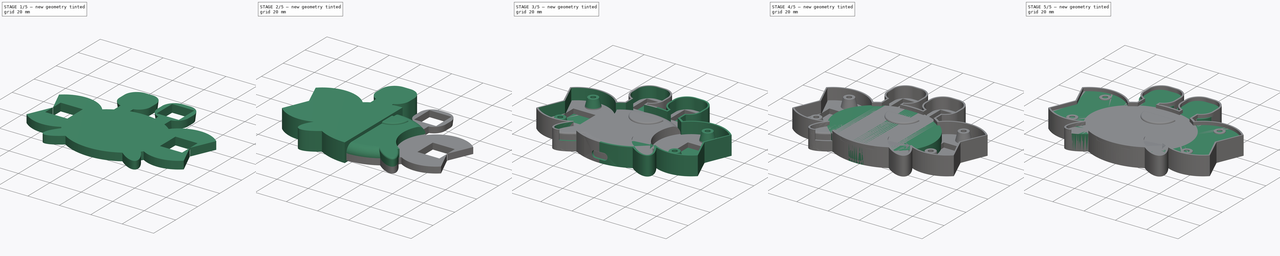
[diagram: build sequence overview — one tinted view per stage of 5, left to right]
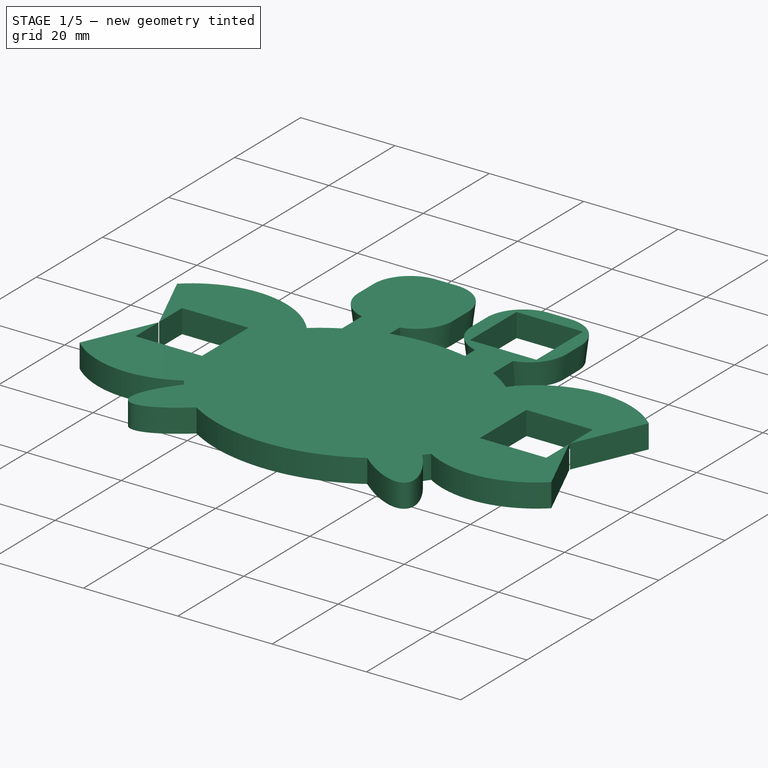
[diagram: stage 1 of 5 — iso view after this stage's code; geometry added in this stage tinted green]
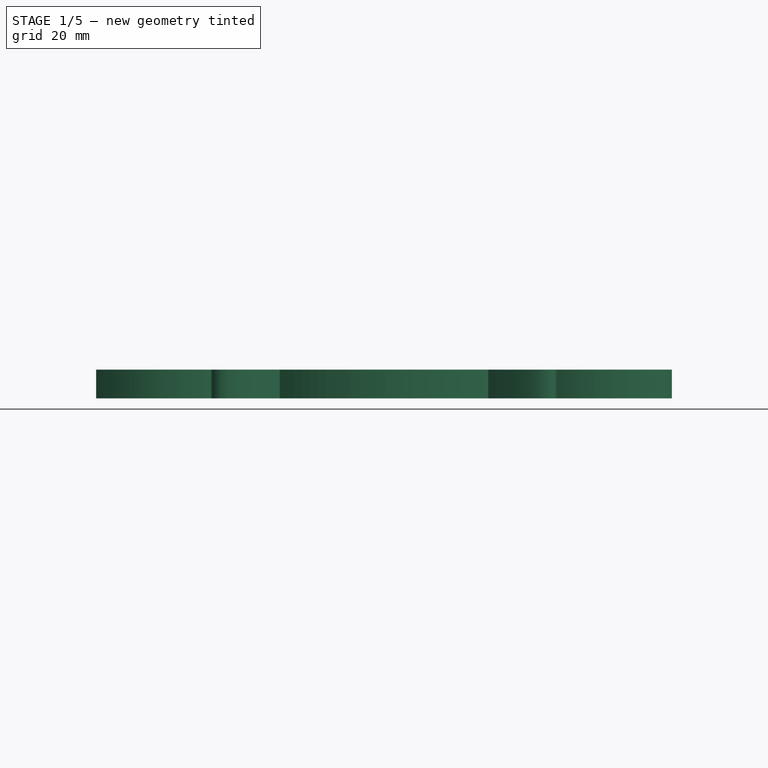
[diagram: stage 1 of 5 — front view after this stage's code; geometry added in this stage tinted green]
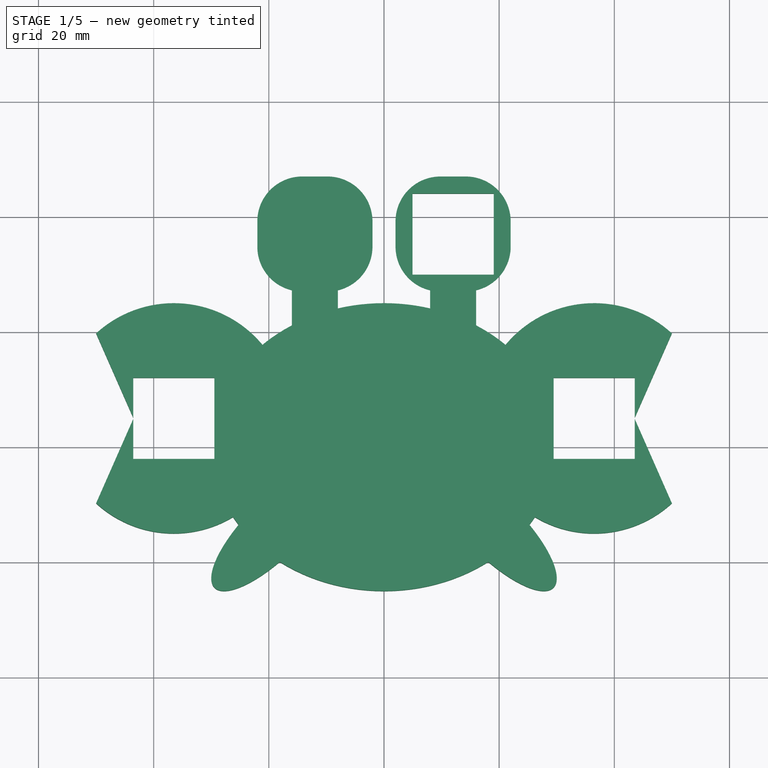
[diagram: stage 1 of 5 — top view after this stage's code; geometry added in this stage tinted green]
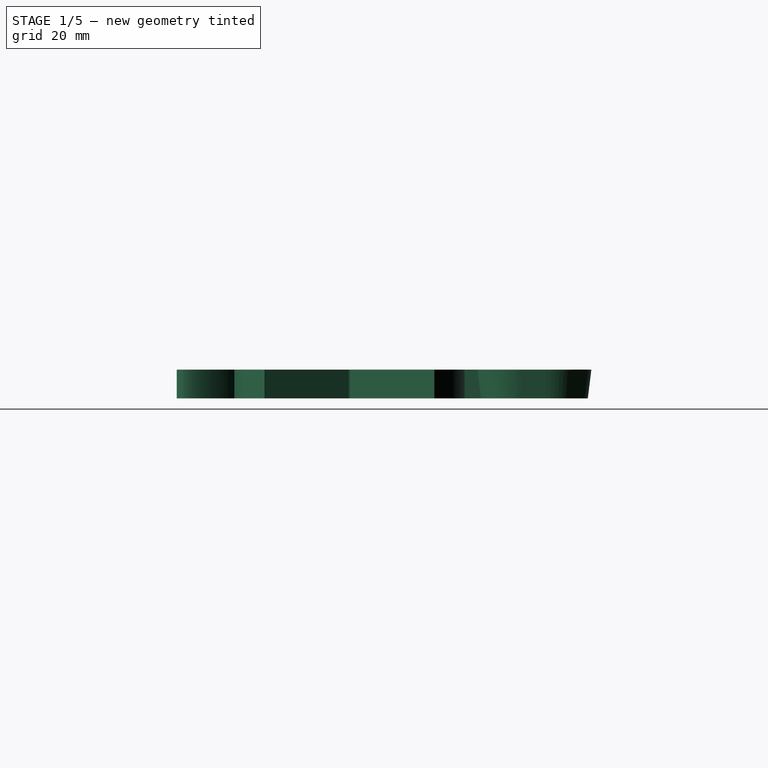
[diagram: stage 1 of 5 — right view after this stage's code; geometry added in this stage tinted green]
FCSTD DOCUMENT  (FreeCAD 0.19R)
Label: Crab03xD
License: All rights reserved
LicenseURL: http://en.wikipedia.org/wiki/All_rights_reserved
objects: Sketcher::SketchObject×29, PartDesign::Pocket×16, PartDesign::Pad×13, PartDesign::Mirrored×7, PartDesign::Chamfer×5, PartDesign::Body×4, PartDesign::Fillet×3, Spreadsheet::Sheet×1, Part::Feature×1
note: 115 computed .brp shape members not serialized (recipe doc carries the construction recipe); baked Part::Feature solids carry a one-line shape summary decoded from their .brp

FEATURE [PartDesign::Body] Body
  Group = -> [Sketch,Pad,Sketch001,Pad001,Sketch002,Pad002,Sketch003,Pad003,Sketch004,Pad004,Sketch005,Pocket,Sketch006,Pocket001,Sketch007,Pocket002,Sketch008,Pocket003,Sketch009,Pocket004]
  Origin = -> Origin
  Tip = -> Pocket004
FEATURE [Sketcher::SketchObject] Sketch010
  FullyConstrained = true
  MapMode = 5
  Support = -> [XY_Plane001]
  sketch-geometry (54):
    g0: ArcOfCircle CenterX=-36.5 CenterY=5 CenterZ=0 NormalX=0 NormalY=0 NormalZ=1 AngleXU=0 Radius=20 StartAngle=5.25244 EndAngle=6.97555
    g1: ArcOfCircle CenterX=36.5 CenterY=5 CenterZ=0 NormalX=0 NormalY=0 NormalZ=1 AngleXU=0 Radius=20 StartAngle=2.44923 EndAngle=4.17233
    g2: ArcOfEllipse CenterX=-18.8197 CenterY=-13.8197 CenterZ=0 NormalX=0 NormalY=0 NormalZ=1 MajorRadius=15 MinorRadius=5 AngleXU=0.785398 StartAngle=1.86286 EndAngle=4.45511
    g3: LineSegment StartX=-8.21306 StartY=-3.21306 StartZ=0 EndX=-29.4263 EndY=-24.4263 EndZ=0
    g4: LineSegment StartX=-22.3552 StartY=-10.2841 StartZ=0 EndX=-15.2841 EndY=-17.3552 EndZ=0
    g5: GeomPoint X=-8.81966 Y=-3.81966 Z=0
    g6: GeomPoint X=-28.8197 Y=-23.8197 Z=0
    g7: LineSegment StartX=-30 StartY=-15 StartZ=0 EndX=-30 EndY=-25 EndZ=0
    g8: LineSegment StartX=-30 StartY=-25 StartZ=0 EndX=-20 EndY=-25 EndZ=0
    g9: GeomPoint X=-27.7639 Y=-25 Z=0
    g10: GeomPoint X=-30 Y=-22.7639 Z=0
    g11: ArcOfEllipse CenterX=0 CenterY=0 CenterZ=0 NormalX=0 NormalY=0 NormalZ=1 MajorRadius=30 MinorRadius=25 AngleXU=3.14159 StartAngle=0.507673 EndAngle=0.569855
    g12: LineSegment StartX=-30 StartY=0 StartZ=0 EndX=30 EndY=0 EndZ=0
    g13: LineSegment StartX=0 StartY=-25 StartZ=0 EndX=0 EndY=25 EndZ=0
    g14: GeomPoint X=-16.5831 Y=0 Z=0
    g15: GeomPoint X=16.5831 Y=0 Z=0
    g16: ArcOfEllipse CenterX=18.8197 CenterY=-13.8197 CenterZ=0 NormalX=0 NormalY=0 NormalZ=1 MajorRadius=15 MinorRadius=5 AngleXU=-0.785398 StartAngle=4.96967 EndAngle=7.56192
    g17: LineSegment StartX=29.4263 StartY=-24.4263 StartZ=0 EndX=8.21306 EndY=-3.21306 EndZ=0
    g18: LineSegment StartX=22.3552 StartY=-10.2841 StartZ=0 EndX=15.2841 EndY=-17.3552 EndZ=0
    g19: GeomPoint X=28.8197 Y=-23.8197 Z=0
    g20: GeomPoint X=8.81966 Y=-3.81966 Z=0
    g21: LineSegment StartX=-8.21306 StartY=-3.21306 StartZ=0 EndX=0 EndY=0 EndZ=0
    g22: LineSegment StartX=0 StartY=0 StartZ=0 EndX=8.21306 EndY=-3.21306 EndZ=0
    g23: ArcOfEllipse CenterX=0 CenterY=0 CenterZ=0 NormalX=0 NormalY=0 NormalZ=1 MajorRadius=30 MinorRadius=25 AngleXU=3.14159 StartAngle=0.92315 EndAngle=2.21844
    g24: LineSegment StartX=-30 StartY=0 StartZ=0 EndX=30 EndY=0 EndZ=0
    g25: LineSegment StartX=0 StartY=-25 StartZ=0 EndX=0 EndY=25 EndZ=0
    g26: GeomPoint X=-16.5831 Y=0 Z=0
    g27: GeomPoint X=16.5831 Y=0 Z=0
    g28: LineSegment StartX=-16 StartY=21.1476 StartZ=0 EndX=-16 EndY=27 EndZ=0
    g29: LineSegment StartX=-16 StartY=27 StartZ=0 EndX=-8 EndY=27 EndZ=0
    g30: LineSegment StartX=-8 StartY=27 StartZ=0 EndX=-8 EndY=24.0947 EndZ=0
    g31: LineSegment StartX=8 StartY=24.0947 StartZ=0 EndX=8 EndY=27 EndZ=0
    g32: LineSegment StartX=8 StartY=27 StartZ=0 EndX=16 EndY=27 EndZ=0
    g33: LineSegment StartX=16 StartY=27 StartZ=0 EndX=16 EndY=21.1476 EndZ=0
    g34: ArcOfEllipse CenterX=0 CenterY=0 CenterZ=0 NormalX=0 NormalY=0 NormalZ=1 MajorRadius=30 MinorRadius=25 AngleXU=0 StartAngle=2.13333 EndAngle=2.35112
    g35: LineSegment StartX=30 StartY=0 StartZ=0 EndX=-30 EndY=0 EndZ=0
    g36: LineSegment StartX=0 StartY=25 StartZ=0 EndX=0 EndY=-25 EndZ=0
    g37: GeomPoint X=16.5831 Y=0 Z=0
    g38: GeomPoint X=-16.5831 Y=0 Z=0
    g39: ArcOfEllipse CenterX=0 CenterY=0 CenterZ=0 NormalX=0 NormalY=0 NormalZ=1 MajorRadius=30 MinorRadius=25 AngleXU=0 StartAngle=1.30086 EndAngle=1.84073
    g40: LineSegment StartX=30 StartY=0 StartZ=0 EndX=-30 EndY=0 EndZ=0
    g41: LineSegment StartX=0 StartY=25 StartZ=0 EndX=0 EndY=-25 EndZ=0
    g42: GeomPoint X=16.5831 Y=0 Z=0
    g43: GeomPoint X=-16.5831 Y=0 Z=0
    g44: ArcOfEllipse CenterX=0 CenterY=0 CenterZ=0 NormalX=0 NormalY=0 NormalZ=1 MajorRadius=30 MinorRadius=25 AngleXU=0 StartAngle=0.790475 EndAngle=1.00826
    g45: LineSegment StartX=30 StartY=0 StartZ=0 EndX=-30 EndY=0 EndZ=0
    g46: LineSegment StartX=0 StartY=25 StartZ=0 EndX=0 EndY=-25 EndZ=0
    g47: GeomPoint X=16.5831 Y=0 Z=0
    g48: GeomPoint X=-16.5831 Y=0 Z=0
    g49: ArcOfEllipse CenterX=0 CenterY=0 CenterZ=0 NormalX=0 NormalY=0 NormalZ=1 MajorRadius=30 MinorRadius=25 AngleXU=0 StartAngle=5.71333 EndAngle=5.77551
    g50: LineSegment StartX=30 StartY=0 StartZ=0 EndX=-30 EndY=0 EndZ=0
    g51: LineSegment StartX=0 StartY=25 StartZ=0 EndX=0 EndY=-25 EndZ=0
    g52: GeomPoint X=16.5831 Y=0 Z=0
    g53: GeomPoint X=-16.5831 Y=0 Z=0
  constraints (89):
    c: Radius(g0) = 20
    c: Equal(g1,g0)
    c: Horizontal(g1,g0)
    c: InternalAlignment(g3-g6 -> g2) x4
    c: Distance(g3) = 30
    c: Distance(g4) = 10
    c: Angle(g-1,g3) = 0.785398
    c: Vertical(g7)
    c: Coincident(g8,g7)
    c: Horizontal(g8)
    c: PointOnObject(g9,g2)
    c: PointOnObject(g9,g8)
    c: Tangent(g2,g8,g9) = -1.5708
    c: PointOnObject(g10,g2)
    c: PointOnObject(g10,g7)
    c: Tangent(g2,g7,g10) = -1.5708
    c: Equal(g7,g8)
    c: DistanceX(g8,g8) = 10
    c: DistanceY(g-1,g0) = 5
    c: DistanceX(g0,g-1) = 36.5
    c: InternalAlignment(g12-g15 -> g11) x4
    c: Horizontal(g12)
    c: DistanceX(g12,g12) = 60
    c: DistanceY(g13,g13) = 50
    c: Coincident(g11,g0)
    c: Coincident(g11,g-1)
    c: Coincident(g2,g11)
    c: DistanceX(g11,g1) = 36.5
    c: Vertical(g12,g7)
    c: Horizontal(g7,g13)
    c: InternalAlignment(g17-g20 -> g16) x4
    c: Angle(g17,g-1) = 0.785398
    c: Equal(g17,g3)
    c: Equal(g18,g4)
    c: Horizontal(g2,g16)
    c: Coincident(g21,g3)
    c: Coincident(g21,g11)
    c: Coincident(g22,g11)
    c: Coincident(g22,g17)
    c: Equal(g22,g21)
    c: InternalAlignment(g24-g27 -> g23) x4
    c: Coincident(g23,g16)
    c: Coincident(g23,g2)
    c: Equal(g25,g13)
    c: Equal(g24,g12)
    c: Horizontal(g24)
    c: Coincident(g23,g11)
    c: Vertical(g28)
    c: Coincident(g29,g28)
    c: Horizontal(g29)
    c: Coincident(g30,g29)
    c: Vertical(g30)
    c: Vertical(g31)
    c: Coincident(g32,g31)
    c: Horizontal(g32)
    c: Coincident(g33,g32)
    c: Vertical(g33)
    c: Equal(g29,g32)
    c: DistanceX(g32,g32) = 8
    c: InternalAlignment(g35-g38 -> g34) x4
    c: Horizontal(g35)
    c: Equal(g36,g13)
    c: Equal(g35,g12)
    c: Coincident(g34,g11)
    c: Coincident(g34,g0)
    c: Coincident(g34,g28)
    c: Horizontal(g31,g30)
    c: Horizontal(g33,g28)
    c: Horizontal(g29,g31)
    c: DistanceY(g11,g29) = 27
    c: InternalAlignment(g40-g43 -> g39) x4
    c: Coincident(g39,g11)
    c: PointOnObject(g12,g39)
    c: Coincident(g39,g30)
    c: Coincident(g39,g31)
    c: Coincident(g41,g13)
    c: DistanceX(g29,g31) = 16
    c: InternalAlignment(g45-g48 -> g44) x4
    c: Coincident(g44,g11)
    c: Coincident(g44,g33)
    c: Coincident(g44,g1)
    c: Coincident(g46,g13)
    c: InternalAlignment(g50-g53 -> g49) x4
    c: Coincident(g49,g11)
    c: PointOnObject(g12,g49)
    c: Coincident(g49,g1)
    c: Coincident(g49,g16)
    c: Horizontal(g50)
    c: Horizontal(g0,g1)
FEATURE [PartDesign::Pad] Pad005
  Direction = (1,1,1)
  Length = 5
  Length2 = 100
  Profile = -> Sketch010
  Type = 0
FEATURE [Part::Feature] Feature  label="CrabKey"
  Placement = pos=(-50,46,8) rot=(0,0,1;0rad)
  shape: bbox 99.92 x 71 x 11.72 mm, 6210 faces, 53 solids (baked)
FEATURE [Sketcher::SketchObject] Sketch015
  FullyConstrained = true
  MapMode = 5
  Support = -> [XY_Plane001]
  sketch-geometry (5):
    g0: ArcOfCircle CenterX=36.5 CenterY=5 CenterZ=0 NormalX=0 NormalY=0 NormalZ=1 AngleXU=0 Radius=20 StartAngle=0.829832 EndAngle=5.45335
    g1: LineSegment StartX=0 StartY=0 StartZ=0 EndX=0 EndY=5 EndZ=0
    g2: LineSegment StartX=0 StartY=5 StartZ=0 EndX=36.5 EndY=5 EndZ=0
    g3: LineSegment StartX=50 StartY=19.7564 StartZ=0 EndX=43.5 EndY=5 EndZ=0
    g4: LineSegment StartX=43.5 StartY=5 StartZ=0 EndX=50 EndY=-9.75635 EndZ=0
  constraints (15):
    c: Radius(g0) = 20
    c: Vertical(g0,g0)
    c: Coincident(g1,g-1)
    c: Coincident(g2,g1)
    c: Coincident(g2,g0)
    c: Horizontal(g2)
    c: Vertical(g1)
    c: DistanceY(g1,g1) = 5
    c: DistanceX(g2,g2) = 36.5
    c: Coincident(g3,g0)
    c: Coincident(g4,g3)
    c: Coincident(g4,g0)
    c: DistanceX(g3,g0) = 6.5
    c: Equal(g4,g3)
    c: DistanceX(g0,g3) = 7
FEATURE [PartDesign::Pad] Pad008
  BaseFeature = -> Pad005
  Direction = (1,1,1)
  Length = 5
  Length2 = 100
  Profile = -> Sketch015
  Type = 0
FEATURE [PartDesign::Mirrored] Mirrored002
  BaseFeature = -> Pad008
  MirrorPlane = -> Sketch015 [V_Axis]
  Originals = -> [Pad008]
FEATURE [Sketcher::SketchObject] Sketch016
  FullyConstrained = true
  MapMode = 5
  Placement = pos=(0,0,5) rot=(0,0,1;0rad)
  Support = -> [Mirrored002]
  sketch-geometry (9):
    g0: LineSegment StartX=0 StartY=0 StartZ=0 EndX=0 EndY=5 EndZ=0
    g1: LineSegment StartX=0 StartY=5 StartZ=0 EndX=36.5 EndY=5 EndZ=0
    g2: LineSegment StartX=36.5 StartY=5 StartZ=0 EndX=43.55 EndY=12.05 EndZ=0
    g3: LineSegment StartX=36.5 StartY=5 StartZ=0 EndX=43.55 EndY=-2.05 EndZ=0
    g4: LineSegment StartX=36.5 StartY=5 StartZ=0 EndX=29.45 EndY=-2.05 EndZ=0
    g5: LineSegment StartX=29.45 StartY=-2.05 StartZ=0 EndX=43.55 EndY=-2.05 EndZ=0
    g6: LineSegment StartX=43.55 StartY=-2.05 StartZ=0 EndX=43.55 EndY=12.05 EndZ=0
    g7: LineSegment StartX=43.55 StartY=12.05 StartZ=0 EndX=29.45 EndY=12.05 EndZ=0
    g8: LineSegment StartX=29.45 StartY=12.05 StartZ=0 EndX=29.45 EndY=-2.05 EndZ=0
  constraints (24):
    c: Coincident(g0,g-1)
    c: PointOnObject(g0,g-2)
    c: Coincident(g1,g0)
    c: Horizontal(g1)
    c: Coincident(g2,g1)
    c: Coincident(g3,g1)
    c: Coincident(g4,g1)
    c: Equal(g2,g3)
    c: Equal(g3,g4)
    c: Coincident(g5,g4)
    c: Coincident(g5,g3)
    c: Horizontal(g5)
    c: Coincident(g6,g5)
    c: Coincident(g6,g2)
    c: Vertical(g6)
    c: Coincident(g7,g6)
    c: Horizontal(g7)
    c: Coincident(g8,g7)
    c: Coincident(g8,g5)
    c: Vertical(g8)
    c: Equal(g8,g7)
    c: DistanceY(g0,g0) = 5
    c: DistanceX(g1,g1) = 36.5
    c: DistanceX(g7,g7) = 14.1
FEATURE [PartDesign::Pocket] Pocket007
  BaseFeature = -> Mirrored002
  Length = 5
  Length2 = 100
  Profile = -> Sketch016
  Type = 0
FEATURE [PartDesign::Mirrored] Mirrored003
  BaseFeature = -> Pocket007
  MirrorPlane = -> Sketch016 [V_Axis]
  Originals = -> [Pocket007]
FEATURE [Sketcher::SketchObject] Sketch017
  FullyConstrained = true
  MapMode = 5
  Support = -> [XY_Plane001]
  sketch-geometry (15):
    g0: LineSegment StartX=0 StartY=0 StartZ=0 EndX=8 EndY=0 EndZ=0
    g1: LineSegment StartX=8 StartY=0 StartZ=0 EndX=8 EndY=27.2105 EndZ=0
    g2: ArcOfCircle CenterX=9.8 CenterY=39.2 CenterZ=0 NormalX=0 NormalY=0 NormalZ=1 AngleXU=0 Radius=7.8 StartAngle=1.5708 EndAngle=3.14159
    g3: ArcOfCircle CenterX=9.8 CenterY=34.8 CenterZ=0 NormalX=0 NormalY=0 NormalZ=1 AngleXU=0 Radius=7.8 StartAngle=3.14159 EndAngle=4.47952
    g4: ArcOfCircle CenterX=14.2 CenterY=34.8 CenterZ=0 NormalX=0 NormalY=0 NormalZ=1 AngleXU=0 Radius=7.8 StartAngle=4.94526 EndAngle=6.28319
    g5: ArcOfCircle CenterX=14.2 CenterY=39.2 CenterZ=0 NormalX=0 NormalY=0 NormalZ=1 AngleXU=0 Radius=7.8 StartAngle=2e-16 EndAngle=1.5708
    g6: LineSegment StartX=9.8 StartY=47 StartZ=0 EndX=14.2 EndY=47 EndZ=0
    g7: LineSegment StartX=22 StartY=39.2 StartZ=0 EndX=22 EndY=34.8 EndZ=0
    g8: LineSegment StartX=2 StartY=34.8 StartZ=0 EndX=2 EndY=39.2 EndZ=0
    g9: LineSegment StartX=16 StartY=27.2105 StartZ=0 EndX=16 EndY=0 EndZ=0
    g10: LineSegment StartX=16 StartY=0 StartZ=0 EndX=8 EndY=0 EndZ=0
    g11: LineSegment StartX=2 StartY=34.8 StartZ=0 EndX=9.8 EndY=34.8 EndZ=0
    g12: LineSegment StartX=14.2 StartY=34.8 StartZ=0 EndX=22 EndY=34.8 EndZ=0
    g13: LineSegment StartX=9.8 StartY=39.2 StartZ=0 EndX=2 EndY=39.2 EndZ=0
    g14: LineSegment StartX=14.2 StartY=39.2 StartZ=0 EndX=22 EndY=39.2 EndZ=0
  constraints (44):
    c: Coincident(g0,g-1)
    c: Horizontal(g0)
    c: Coincident(g1,g0)
    c: Vertical(g1)
    c: Coincident(g6,g2)
    c: Coincident(g6,g5)
    c: Horizontal(g6)
    c: Coincident(g7,g5)
    c: Coincident(g7,g4)
    c: Coincident(g8,g3)
    c: Coincident(g8,g2)
    c: Vertical(g7)
    c: Vertical(g8)
    c: Equal(g8,g6)
    c: Equal(g6,g7)
    c: Equal(g3,g2)
    c: Vertical(g5,g4)
    c: Horizontal(g4,g3)
    c: Vertical(g2,g2)
    c: Vertical(g5,g5)
    c: Horizontal(g2,g2)
    c: DistanceX(g6,g6) = 4.4
    c: DistanceY(g5,g5) = 7.8
    c: Coincident(g1,g3)
    c: Coincident(g9,g4)
    c: Vertical(g9)
    c: Coincident(g10,g9)
    c: Coincident(g10,g1)
    c: DistanceX(g10,g10) = 8
    c: Horizontal(g1,g4)
    c: DistanceY(g9,g5) = 47
    c: Horizontal(g10)
    c: Coincident(g11,g3)
    c: Coincident(g11,g3)
    c: Horizontal(g11)
    c: Coincident(g12,g4)
    c: Coincident(g12,g4)
    c: Horizontal(g12)
    c: Coincident(g13,g2)
    c: Coincident(g13,g2)
    c: Coincident(g14,g5)
    c: Coincident(g14,g5)
    c: Horizontal(g14)
    c: DistanceX(g0,g0) = 8
FEATURE [PartDesign::Pad] Pad009
  BaseFeature = -> Mirrored003
  Direction = (1,1,1)
  Length = 5
  Length2 = 100
  Profile = -> Sketch017
  Type = 0
FEATURE [PartDesign::Mirrored] Mirrored004
  BaseFeature = -> Pad009
  MirrorPlane = -> Sketch017 [V_Axis]
  Originals = -> [Pad009]
FEATURE [PartDesign::Chamfer] Chamfer001
  Angle = 83
  Base = -> Mirrored004 [Edge116,Edge131]
  BaseFeature = -> Mirrored004
  ChamferType = 2
  FlipDirection = false
  Size = 0.6
  Size2 = 1
  SupportTransform = false
FEATURE [Sketcher::SketchObject] Sketch018
  FullyConstrained = true
  MapMode = 5
  Placement = pos=(0,0,5) rot=(0,0,1;0rad)
  Support = -> [Chamfer001]
  expr: Constraints[15] = 25 + 3 + 9
  expr: Constraints[18] = 3 + 9
  sketch-geometry (7):
    g0: LineSegment StartX=4.95 StartY=44.05 StartZ=0 EndX=4.95 EndY=29.95 EndZ=0
    g1: LineSegment StartX=4.95 StartY=29.95 StartZ=0 EndX=19.05 EndY=29.95 EndZ=0
    g2: LineSegment StartX=19.05 StartY=29.95 StartZ=0 EndX=19.05 EndY=44.05 EndZ=0
    g3: LineSegment StartX=4.95 StartY=44.05 StartZ=0 EndX=19.05 EndY=44.05 EndZ=0
    g4: LineSegment StartX=12 StartY=37 StartZ=0 EndX=19.05 EndY=44.05 EndZ=0
    g5: LineSegment StartX=4.95 StartY=44.05 StartZ=0 EndX=12 EndY=37 EndZ=0
    g6: LineSegment StartX=12 StartY=37 StartZ=0 EndX=19.05 EndY=29.95 EndZ=0
  constraints (19):
    c: Vertical(g0)
    c: Coincident(g1,g0)
    c: Horizontal(g1)
    c: Coincident(g2,g1)
    c: Vertical(g2)
    c: Coincident(g3,g0)
    c: Coincident(g3,g2)
    c: Horizontal(g3)
    c: Equal(g3,g2)
    c: DistanceX(g3,g3) = 14.1
    c: Coincident(g4,g2)
    c: Coincident(g5,g0)
    c: Coincident(g5,g4)
    c: Coincident(g6,g4)
    c: Coincident(g6,g1)
    c: DistanceY(g-1,g4) = 37
    c: Equal(g5,g4)
    c: Equal(g4,g6)
    c: DistanceX(g-1,g4) = 12
FEATURE [PartDesign::Pocket] Pocket008
  BaseFeature = -> Chamfer001
  Length = 5
  Length2 = 100
  Profile = -> Sketch018
  Type = 0
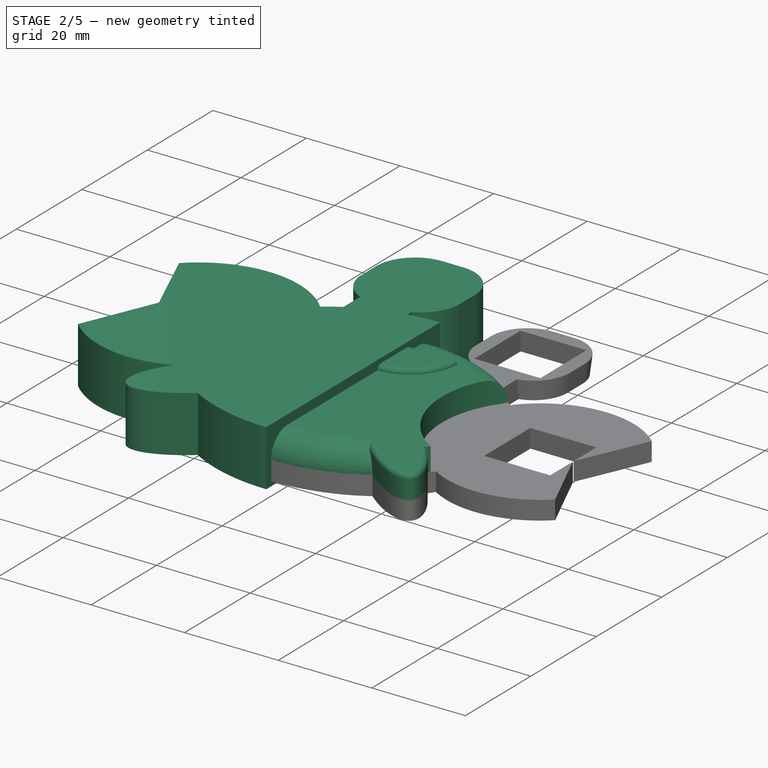
[diagram: stage 2 of 5 — iso view after this stage's code; geometry added in this stage tinted green]
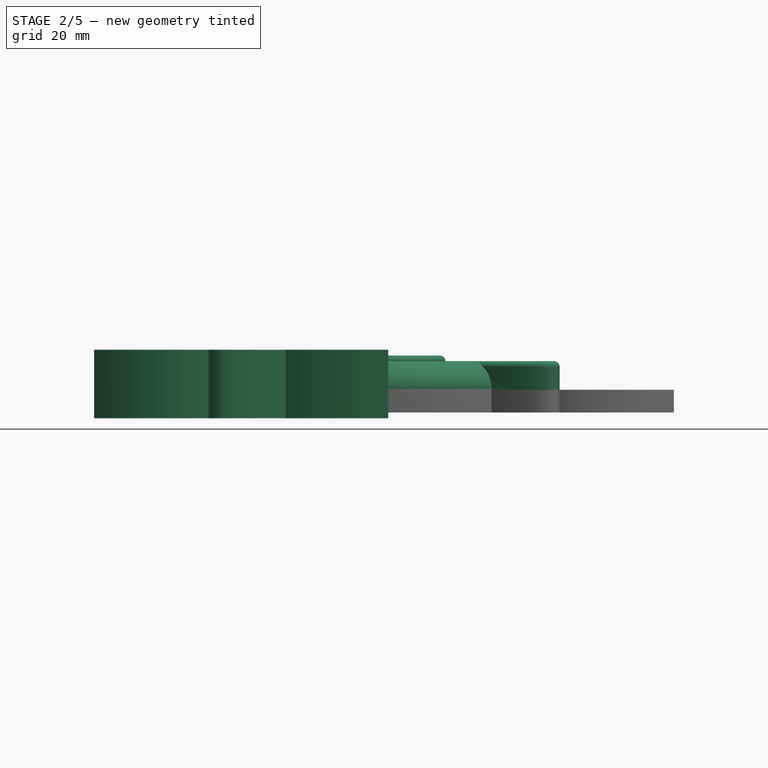
[diagram: stage 2 of 5 — front view after this stage's code; geometry added in this stage tinted green]
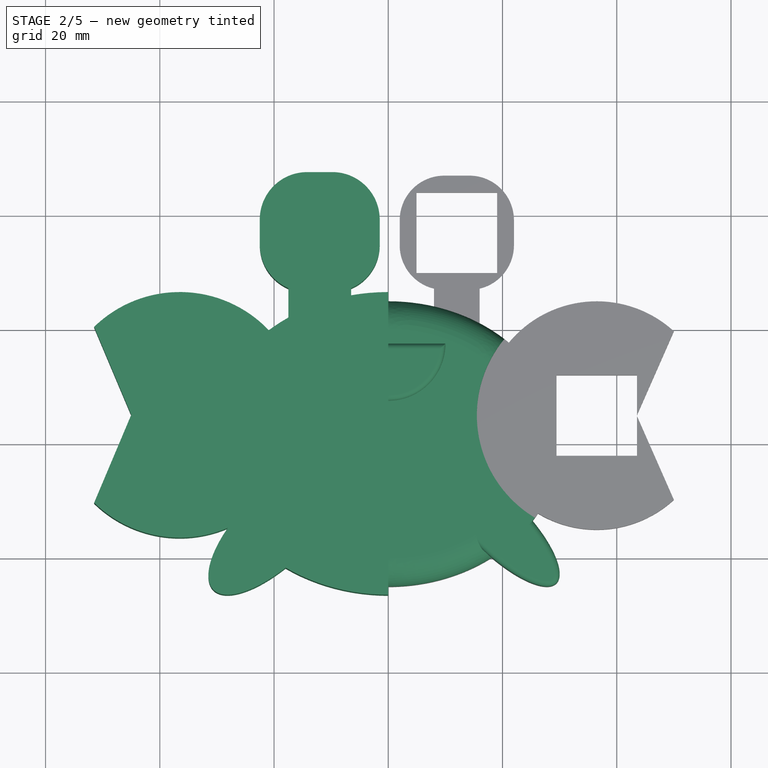
[diagram: stage 2 of 5 — top view after this stage's code; geometry added in this stage tinted green]
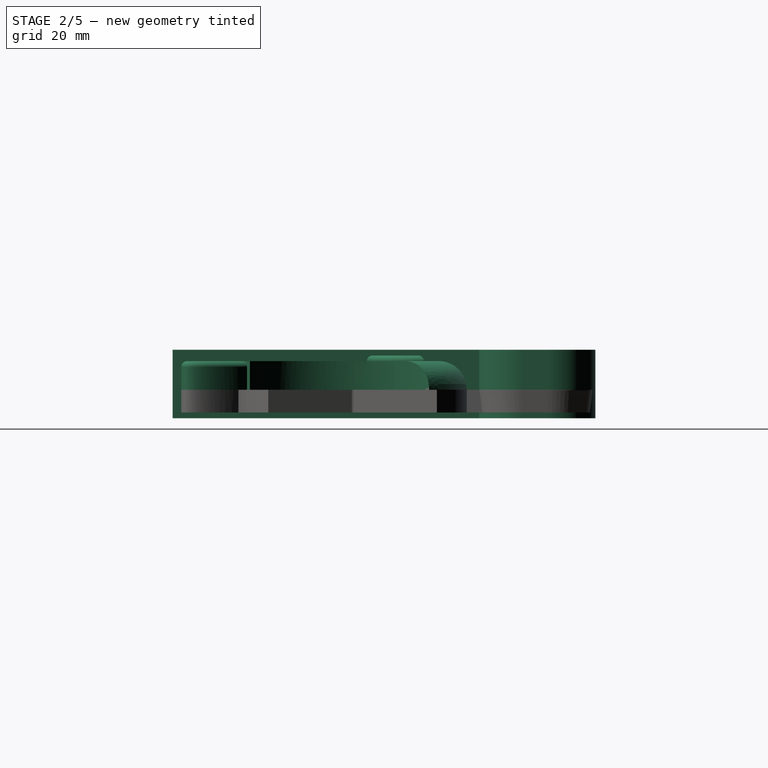
[diagram: stage 2 of 5 — right view after this stage's code; geometry added in this stage tinted green]
FEATURE [Sketcher::SketchObject] Sketch011
  FullyConstrained = true
  MapMode = 5
  Support = -> [XY_Plane002]
  expr: Constraints[5] = 7mm + Spreadsheet.wall + Spreadsheet.gap
  expr: Constraints[72] = 60mm + Spreadsheet.gap + Spreadsheet.wall + Spreadsheet.gap + Spreadsheet.wall
  expr: Constraints[6] = 20mm + Spreadsheet.wall + Spreadsheet.gap
  expr: Constraints[39] = 8mm + Spreadsheet.gap + Spreadsheet.wall + Spreadsheet.gap + Spreadsheet.wall
  expr: Constraints[62] = 25mm + 21mm + Spreadsheet.gap + Spreadsheet.wall
  expr: Constraints[28] = 6.8mm + Spreadsheet.gap + Spreadsheet.wall
  expr: Constraints[44] = 10mm + Spreadsheet.gap + Spreadsheet.wall + Spreadsheet.gap + Spreadsheet.wall
  expr: Constraints[45] = 30mm + Spreadsheet.gap + Spreadsheet.wall + Spreadsheet.gap + Spreadsheet.wall
  expr: Constraints[58] = 30mm + Spreadsheet.gap + Spreadsheet.wall
  expr: Constraints[63] = 3mm - Spreadsheet.gap - Spreadsheet.wall
  expr: Constraints[59] = 25mm + Spreadsheet.gap + Spreadsheet.wall
  expr: Constraints[73] = 50mm + Spreadsheet.gap + Spreadsheet.wall + Spreadsheet.gap + Spreadsheet.wall
  expr: Constraints[89] = 60mm + Spreadsheet.gap + Spreadsheet.wall + Spreadsheet.gap + Spreadsheet.wall
  expr: Constraints[78] = 60mm + Spreadsheet.gap + Spreadsheet.wall + Spreadsheet.gap + Spreadsheet.wall
  expr: Constraints[79] = 50mm + Spreadsheet.gap + Spreadsheet.wall + Spreadsheet.gap + Spreadsheet.wall
  expr: Constraints[90] = 50mm + Spreadsheet.gap + Spreadsheet.wall + Spreadsheet.gap + Spreadsheet.wall
  sketch-geometry (39):
    g0: LineSegment StartX=-51.5 StartY=20.4029 StartZ=0 EndX=-45 EndY=5 EndZ=0
    g1: LineSegment StartX=-45 StartY=5 StartZ=0 EndX=-51.5 EndY=-10.4029 EndZ=0
    g2: ArcOfCircle CenterX=-36.5 CenterY=5 CenterZ=0 NormalX=0 NormalY=0 NormalZ=1 AngleXU=0 Radius=21.5 StartAngle=0.760116 EndAngle=2.34294
    g3: ArcOfCircle CenterX=-36.5 CenterY=5 CenterZ=0 NormalX=0 NormalY=0 NormalZ=1 AngleXU=0 Radius=21.5 StartAngle=3.94024 EndAngle=5.11365
    g4: LineSegment StartX=-17.5 StartY=22.0342 StartZ=0 EndX=-17.5 EndY=27.1842 EndZ=0
    g5: ArcOfCircle CenterX=-14.2 CenterY=34.8 CenterZ=0 NormalX=0 NormalY=0 NormalZ=1 AngleXU=0 Radius=8.3 StartAngle=3.14159 EndAngle=4.3035
    g6: ArcOfCircle CenterX=-14.2 CenterY=39.2 CenterZ=0 NormalX=0 NormalY=0 NormalZ=1 AngleXU=0 Radius=8.3 StartAngle=1.5708 EndAngle=3.14159
    g7: LineSegment StartX=-22.5 StartY=39.2 StartZ=0 EndX=-22.5 EndY=34.8 EndZ=0
    g8: ArcOfCircle CenterX=-9.8 CenterY=39.2 CenterZ=0 NormalX=0 NormalY=0 NormalZ=1 AngleXU=0 Radius=8.3 StartAngle=0 EndAngle=1.5708
    g9: LineSegment StartX=-14.2 StartY=47.5 StartZ=0 EndX=-9.8 EndY=47.5 EndZ=0
    g10: LineSegment StartX=-1.5 StartY=39.2 StartZ=0 EndX=-1.5 EndY=34.8 EndZ=0
    g11: ArcOfCircle CenterX=-9.8 CenterY=34.8 CenterZ=0 NormalX=0 NormalY=0 NormalZ=1 AngleXU=0 Radius=8.3 StartAngle=5.12128 EndAngle=6.28319
    g12: LineSegment StartX=-9.8 StartY=39.2 StartZ=0 EndX=-9.8 EndY=47.5 EndZ=0
    g13: LineSegment StartX=-6.5 StartY=27.1842 StartZ=0 EndX=-6.5 EndY=25.9297 EndZ=0
    g14: ArcOfEllipse CenterX=-18.9601 CenterY=-13.9601 CenterZ=0 NormalX=0 NormalY=0 NormalZ=1 MajorRadius=16.5 MinorRadius=6.5 AngleXU=-2.35619 StartAngle=5.15407 EndAngle=7.55758
    g15: LineSegment StartX=-30.6273 StartY=-25.6273 StartZ=0 EndX=-7.2928 EndY=-2.2928 EndZ=0
    g16: LineSegment StartX=-14.3639 StartY=-18.5563 StartZ=0 EndX=-23.5563 EndY=-9.36387 EndZ=0
    g17: GeomPoint X=-29.6839 Y=-24.6839 Z=0
    g18: GeomPoint X=-8.23626 Y=-3.23626 Z=0
    g19: LineSegment StartX=-31.5 StartY=-16.5 StartZ=0 EndX=-31.5 EndY=-26.5 EndZ=0
    g20: LineSegment StartX=-31.5 StartY=-26.5 StartZ=0 EndX=-21.5 EndY=-26.5 EndZ=0
    g21: GeomPoint X=-28.1308 Y=-26.5 Z=0
    g22: GeomPoint X=-31.5 Y=-23.1308 Z=0
    g23: ArcOfEllipse CenterX=0 CenterY=0 CenterZ=0 NormalX=0 NormalY=0 NormalZ=1 MajorRadius=31.5 MinorRadius=26.5 AngleXU=0 StartAngle=1.5708 EndAngle=1.77864
    g24: LineSegment StartX=31.5 StartY=0 StartZ=0 EndX=-31.5 EndY=0 EndZ=0
    g25: LineSegment StartX=0 StartY=26.5 StartZ=0 EndX=0 EndY=-26.5 EndZ=0
    g26: GeomPoint X=17.0294 Y=0 Z=0
    g27: GeomPoint X=-17.0294 Y=0 Z=0
    g28: ArcOfEllipse CenterX=0 CenterY=0 CenterZ=0 NormalX=0 NormalY=0 NormalZ=1 MajorRadius=31.5 MinorRadius=26.5 AngleXU=0 StartAngle=2.15983 EndAngle=2.29703
    g29: LineSegment StartX=31.5 StartY=0 StartZ=0 EndX=-31.5 EndY=0 EndZ=0
    g30: LineSegment StartX=0 StartY=26.5 StartZ=0 EndX=0 EndY=-26.5 EndZ=0
    g31: GeomPoint X=17.0294 Y=0 Z=0
    g32: GeomPoint X=-17.0294 Y=0 Z=0
    g33: ArcOfEllipse CenterX=0 CenterY=0 CenterZ=0 NormalX=0 NormalY=0 NormalZ=1 MajorRadius=31.5 MinorRadius=26.5 AngleXU=3.14159 StartAngle=0.963631 EndAngle=1.5708
    g34: LineSegment StartX=-31.5 StartY=2.3e-15 StartZ=0 EndX=31.5 EndY=-2.3e-15 EndZ=0
    g35: LineSegment StartX=0 StartY=-26.5 StartZ=0 EndX=0 EndY=26.5 EndZ=0
    g36: GeomPoint X=-17.0294 Y=4.2e-15 Z=0
    g37: GeomPoint X=17.0294 Y=-4.2e-15 Z=0
    g38: LineSegment StartX=0 StartY=26.5 StartZ=0 EndX=0 EndY=-26.5 EndZ=0
  constraints (85):
    c: Coincident(g1,g0)
    c: Vertical(g0,g1)
    c: DistanceX(g0,g0) = 6.5
    c: Coincident(g2,g0)
    c: Horizontal(g0,g2)
    c: DistanceX(g0,g2) = 8.5
    c: Radius(g2) = 21.5
    c: Equal(g0,g1)
    c: Coincident(g3,g2)
    c: Coincident(g3,g1)
    c: Vertical(g4)
    c: Horizontal(g5,g5)
    c: Horizontal(g6,g6)
    c: Vertical(g6,g6)
    c: Coincident(g7,g6)
    c: Coincident(g7,g5)
    c: Vertical(g7)
    c: Equal(g9,g7)
    c: Horizontal(g8,g8)
    c: Coincident(g10,g8)
    c: Vertical(g10)
    c: Coincident(g11,g10)
    c: Coincident(g5,g4)
    c: Vertical(g6,g5)
    c: Vertical(g8,g11)
    c: Horizontal(g10,g11)
    c: Equal(g10,g9)
    c: DistanceX(g9,g9) = 4.4
    c: DistanceY(g12,g12) = 8.3
    c: Coincident(g8,g12)
    c: Coincident(g9,g8)
    c: Coincident(g12,g8)
    c: Horizontal(g9)
    c: Vertical(g12)
    c: Coincident(g6,g9)
    c: Horizontal(g4,g11)
    c: Horizontal(g11,g5)
    c: Coincident(g13,g11)
    c: Vertical(g13)
    c: DistanceX(g4,g11) = 11
    c: InternalAlignment(g15-g18 -> g14) x4
    c: Distance(g16) = 13
    c: Distance(g15) = 33
    c: Angle(g15,g-1) = 2.35619
    c: Vertical(g19)
    c: Coincident(g20,g19)
    c: Horizontal(g20)
    c: PointOnObject(g21,g14)
    c: PointOnObject(g21,g20)
    c: Tangent(g14,g20,g21) = -1.5708
    c: PointOnObject(g22,g14)
    c: PointOnObject(g22,g19)
    c: Tangent(g14,g19,g22) = -1.5708
    c: Equal(g19,g20)
    c: DistanceX(g20,g20) = 10
    c: DistanceX(g19,g-1) = 31.5
    c: DistanceY(g19,g-1) = 26.5
    c: DistanceY(g-1,g2) = 5
    c: DistanceX(g2,g-1) = 36.5
    c: DistanceY(g-1,g8) = 47.5
    c: DistanceX(g8,g-1) = 1.5
    c: Coincident(g3,g14)
    c: InternalAlignment(g24-g27 -> g23) x4
    c: Coincident(g23,g-1)
    c: Coincident(g23,g13)
    c: PointOnObject(g23,g-2)
    c: DistanceX(g24,g24) = 63
    c: DistanceY(g25,g25) = 53
    c: InternalAlignment(g29-g32 -> g28) x4
    c: DistanceX(g29,g29) = 63
    c: DistanceY(g30,g30) = 53
    c: Horizontal(g29)
    c: Coincident(g2,g28)
    c: Coincident(g4,g28)
    c: Coincident(g23,g28)
    c: Vertical(g25)
    c: InternalAlignment(g34-g37 -> g33) x4
    c: DistanceX(g34,g34) = 63
    c: DistanceY(g35,g35) = 53
    c: Vertical(g35)
    c: Coincident(g33,g14)
    c: PointOnObject(g33,g-2)
    c: Coincident(g33,g23)
    c: Coincident(g38,g23)
    c: Coincident(g38,g33)
FEATURE [Spreadsheet::Sheet] Spreadsheet
  cells = A1(wall)==1mm; A2(gap)==0.5mm
FEATURE [PartDesign::Pad] Pad006
  Direction = (1,1,1)
  Length = 12
  Length2 = 100
  Profile = -> Sketch011
  Type = 0
FEATURE [PartDesign::Mirrored] Mirrored005
  BaseFeature = -> Pocket008
  MirrorPlane = -> Sketch018 [V_Axis]
  Originals = -> [Pocket008]
FEATURE [Sketcher::SketchObject] Sketch019
  FullyConstrained = false
  MapMode = 5
  Placement = pos=(0,0,5) rot=(0,0,1;0rad)
  Support = -> [Mirrored005]
  sketch-geometry (24):
    g0: ArcOfCircle CenterX=36.5 CenterY=5 CenterZ=0 NormalX=0 NormalY=0 NormalZ=1 AngleXU=0 Radius=21 StartAngle=2.45019 EndAngle=4.16904
    g1: ArcOfEllipse CenterX=0 CenterY=0 CenterZ=0 NormalX=0 NormalY=0 NormalZ=1 MajorRadius=30 MinorRadius=25 AngleXU=0 StartAngle=0.826548 EndAngle=1.5708
    g2: LineSegment StartX=30 StartY=0 StartZ=0 EndX=-30 EndY=0 EndZ=0
    g3: LineSegment StartX=0 StartY=25 StartZ=0 EndX=0 EndY=-25 EndZ=0
    g4: GeomPoint X=16.5831 Y=0 Z=0
    g5: GeomPoint X=-16.5831 Y=0 Z=0
    g6: ArcOfEllipse CenterX=0 CenterY=0 CenterZ=0 NormalX=0 NormalY=0 NormalZ=1 MajorRadius=30 MinorRadius=25 AngleXU=0 StartAngle=4.71239 EndAngle=5.36003
    g7: LineSegment StartX=30 StartY=0 StartZ=0 EndX=-30 EndY=0 EndZ=0
    g8: LineSegment StartX=0 StartY=25 StartZ=0 EndX=0 EndY=-25 EndZ=0
    g9: GeomPoint X=16.5831 Y=0 Z=0
    g10: GeomPoint X=-16.5831 Y=0 Z=0
    g11: ArcOfEllipse CenterX=0 CenterY=0 CenterZ=0 NormalX=0 NormalY=0 NormalZ=1 MajorRadius=30 MinorRadius=25 AngleXU=0 StartAngle=5.71333 EndAngle=5.73748
    g12: LineSegment StartX=30 StartY=0 StartZ=0 EndX=-30 EndY=0 EndZ=0
    g13: LineSegment StartX=0 StartY=25 StartZ=0 EndX=0 EndY=-25 EndZ=0
    g14: GeomPoint X=16.5831 Y=0 Z=0
    g15: GeomPoint X=-16.5831 Y=0 Z=0
    g16: ArcOfEllipse CenterX=18.8197 CenterY=-13.8197 CenterZ=0 NormalX=0 NormalY=0 NormalZ=1 MajorRadius=15 MinorRadius=5 AngleXU=-0.785398 StartAngle=4.96967 EndAngle=7.56192
    g17: LineSegment StartX=29.4263 StartY=-24.4263 StartZ=0 EndX=8.21306 EndY=-3.21306 EndZ=0
    g18: LineSegment StartX=22.3552 StartY=-10.2841 StartZ=0 EndX=15.2841 EndY=-17.3552 EndZ=0
    g19: GeomPoint X=28.8197 Y=-23.8197 Z=0
    g20: GeomPoint X=8.81966 Y=-3.81966 Z=0
    g21: LineSegment StartX=30 StartY=-22.7639 StartZ=0 EndX=30 EndY=-25 EndZ=0
    g22: LineSegment StartX=27.7639 StartY=-25 StartZ=0 EndX=30 EndY=-25 EndZ=0
    g23: LineSegment StartX=-5.5e-15 StartY=-25 StartZ=0 EndX=1.8e-15 EndY=25 EndZ=0
  constraints (38):
    c: Radius(g0) = 21
    c: DistanceX(g-1,g0) = 36.5
    c: DistanceY(g-1,g0) = 5
    c: InternalAlignment(g2-g5 -> g1) x4
    c: Horizontal(g2)
    c: DistanceX(g2,g2) = 60
    c: DistanceY(g3,g3) = 50
    c: Coincident(g1,g-1)
    c: PointOnObject(g1,g-2)
    c: Coincident(g1,g0)
    c: InternalAlignment(g7-g10 -> g6) x4
    c: Vertical(g8)
    c: Equal(g7,g2)
    c: Equal(g8,g3)
    c: Coincident(g1,g6)
    c: PointOnObject(g6,g-2)
    c: InternalAlignment(g12-g15 -> g11) x4
    c: Horizontal(g12)
    c: Equal(g12,g2)
    c: Equal(g13,g3)
    c: Coincident(g6,g11)
    c: Coincident(g0,g11)
    c: InternalAlignment(g17-g20 -> g16) x4
    c: Coincident(g16,g6)
    c: Coincident(g16,g11)
    c: Angle(g-1,g17) = 2.35619
    c: Distance(g17) = 30
    c: Distance(g18) = 10
    c: Coincident(g22,g21)
    c: Horizontal(g22)
    c: Vertical(g21)
    c: PointOnObject(g21,g16)
    c: PointOnObject(g22,g16)
    c: Equal(g22,g21)
    c: DistanceY(g21,g1) = 25
    c: DistanceX(g6,g21) = 30
    c: Coincident(g23,g6)
    c: Coincident(g23,g1)
FEATURE [PartDesign::Pad] Pad010
  BaseFeature = -> Mirrored005
  Direction = (1,1,1)
  Length = 5
  Length2 = 100
  Profile = -> Sketch019
  Type = 0
FEATURE [PartDesign::Mirrored] Mirrored006
  BaseFeature = -> Pad010
  MirrorPlane = -> Sketch019 [V_Axis]
  Originals = -> [Pad010]
FEATURE [PartDesign::Fillet] Fillet
  Base = -> Mirrored006 [Edge166,Edge109]
  BaseFeature = -> Mirrored006
  Radius = 1
  SupportTransform = false
FEATURE [PartDesign::Fillet] Fillet001
  Base = -> Fillet [Edge19,Edge2]
  BaseFeature = -> Fillet
  Radius = 4.9
  SupportTransform = false
FEATURE [PartDesign::Body] Body003  label="Button"
  Group = -> [Sketch022,Pad011,Sketch021,Pocket009,Sketch020,Pocket010,Chamfer002,Sketch023,Pocket011,Chamfer003,Chamfer004,Sketch024,Pocket012]
  Origin = -> Origin003
  Placement = pos=(-36.5,5,17) rot=(0,0,1;1.5708rad)
  Tip = -> Pocket012
FEATURE [Sketcher::SketchObject] Sketch025
  FullyConstrained = true
  MapMode = 5
  Placement = pos=(0,0,0) rot=(1,0,0;3.14159rad)
  Support = -> [Fillet001]
  sketch-geometry (7):
    g0: LineSegment StartX=-55 StartY=55 StartZ=0 EndX=55 EndY=55 EndZ=0
    g1: LineSegment StartX=55 StartY=55 StartZ=0 EndX=55 EndY=-55 EndZ=0
    g2: LineSegment StartX=55 StartY=-55 StartZ=0 EndX=-55 EndY=-55 EndZ=0
    g3: LineSegment StartX=-55 StartY=-55 StartZ=0 EndX=-55 EndY=55 EndZ=0
    g4: LineSegment StartX=-55 StartY=55 StartZ=0 EndX=0 EndY=0 EndZ=0
    g5: LineSegment StartX=0 StartY=0 StartZ=0 EndX=55 EndY=55 EndZ=0
    g6: LineSegment StartX=0 StartY=0 StartZ=0 EndX=55 EndY=-55 EndZ=0
  constraints (18):
    c: Coincident(g0,g1)
    c: Coincident(g1,g2)
    c: Coincident(g2,g3)
    c: Coincident(g3,g0)
    c: Horizontal(g0)
    c: Horizontal(g2)
    c: Vertical(g1)
    c: Vertical(g3)
    c: Equal(g3,g0)
    c: DistanceX(g0,g0) = 110
    c: Coincident(g4,g0)
    c: Coincident(g4,g-1)
    c: Coincident(g5,g-1)
    c: Coincident(g5,g0)
    c: Coincident(g6,g-1)
    c: Coincident(g6,g1)
    c: Equal(g6,g5)
    c: Equal(g5,g4)
FEATURE [PartDesign::Pocket] Pocket013
  BaseFeature = -> Fillet001
  Length = 1
  Length2 = 100
  Profile = -> Sketch025
  Type = 0
FEATURE [PartDesign::Body] Body002  label="Case"
  Group = -> [Sketch011,Pad006,Sketch012,Pocket005,Mirrored,Mirrored001,Sketch013,Pad007,Chamfer,Sketch014,Pocket006,Sketch027,Pocket015,Sketch028,Pocket016]
  Origin = -> Origin002
  Tip = -> Pocket016
FEATURE [Sketcher::SketchObject] Sketch029
  FullyConstrained = true
  MapMode = 5
  Placement = pos=(0,0,10) rot=(0,0,1;0rad)
  Support = -> [Pocket013]
  sketch-geometry (3):
    g0: ArcOfCircle CenterX=-1.8e-15 CenterY=17.5 CenterZ=0 NormalX=0 NormalY=0 NormalZ=1 AngleXU=0 Radius=10 StartAngle=3.14159 EndAngle=4.71239
    g1: ArcOfCircle CenterX=-1.8e-15 CenterY=17.5 CenterZ=0 NormalX=0 NormalY=0 NormalZ=1 AngleXU=0 Radius=10 StartAngle=4.71239 EndAngle=6.28319
    g2: LineSegment StartX=-10 StartY=17.5 StartZ=0 EndX=10 EndY=17.5 EndZ=0
  constraints (10):
    c: Coincident(g2,g0)
    c: Coincident(g2,g1)
    c: Horizontal(g2)
    c: Vertical(g1,g1)
    c: Horizontal(g1,g1)
    c: DistanceX(g2,g2) = 20
    c: Coincident(g0,g1)
    c: Coincident(g1,g0)
    c: PointOnObject(g0,g-2)
    c: DistanceY(g-1,g0) = 7.5
FEATURE [PartDesign::Pad] Pad012
  BaseFeature = -> Pocket013
  Direction = (1,1,1)
  Length = 1
  Length2 = 100
  Profile = -> Sketch029
  Type = 0
FEATURE [PartDesign::Fillet] Fillet002
  Base = -> Pad012 [Edge65,Edge36,Edge34]
  BaseFeature = -> Pad012
  Radius = 0.99
  SupportTransform = false
FEATURE [PartDesign::Body] Body001  label="Plate"
  Group = -> [Sketch010,Pad005,Sketch015,Pad008,Mirrored002,Sketch016,Pocket007,Mirrored003,Sketch017,Pad009,Mirrored004,Chamfer001,Sketch018,Pocket008,Mirrored005,Sketch019,Pad010,Mirrored006,Fillet,Fillet001,Sketch025,Pocket013,Sketch029,Pad012,Fillet002]
  Origin = -> Origin001
  Placement = pos=(0,0,12) rot=(0,0,1;0rad)
  Tip = -> Fillet002
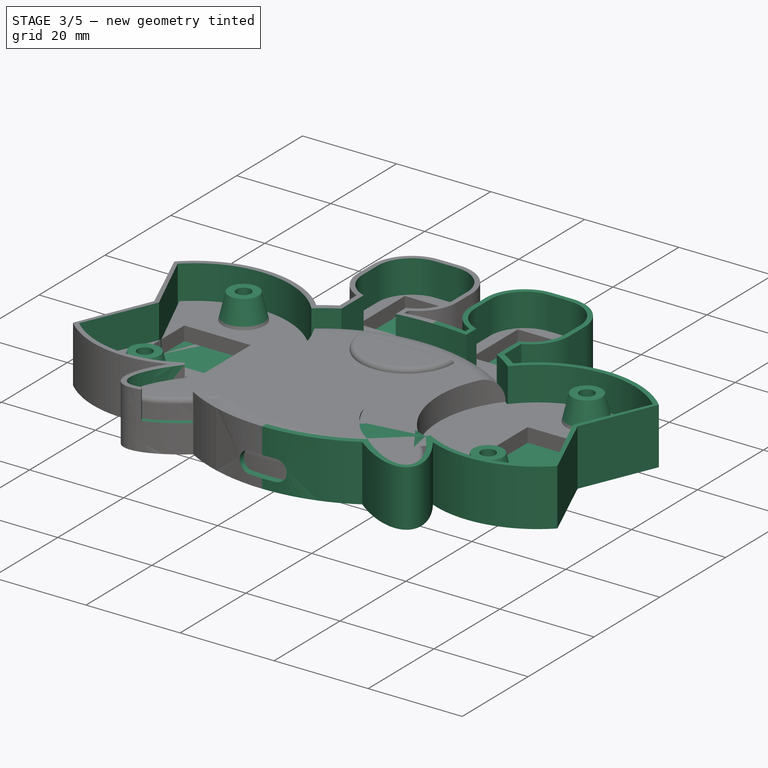
[diagram: stage 3 of 5 — iso view after this stage's code; geometry added in this stage tinted green]
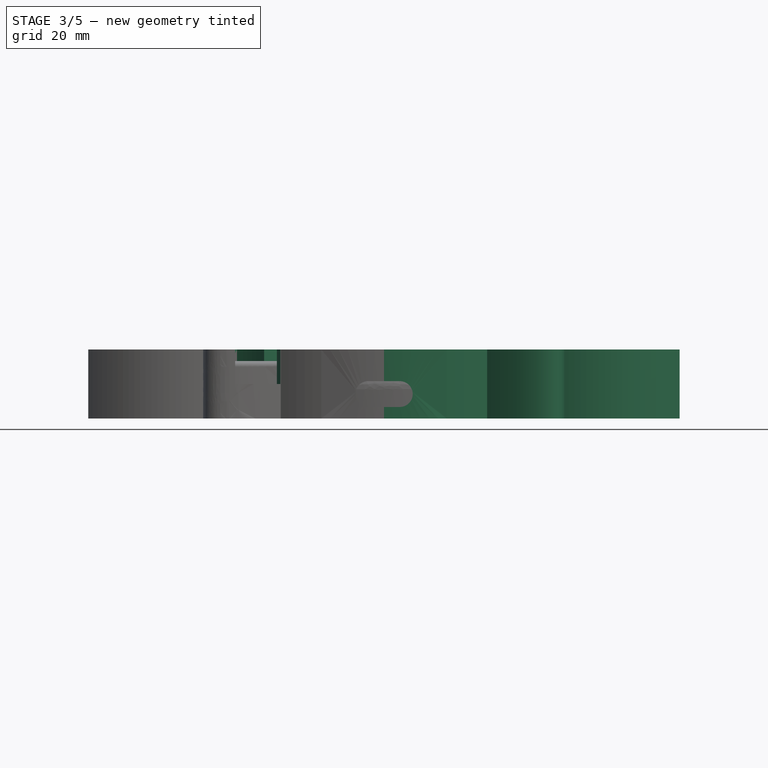
[diagram: stage 3 of 5 — front view after this stage's code; geometry added in this stage tinted green]
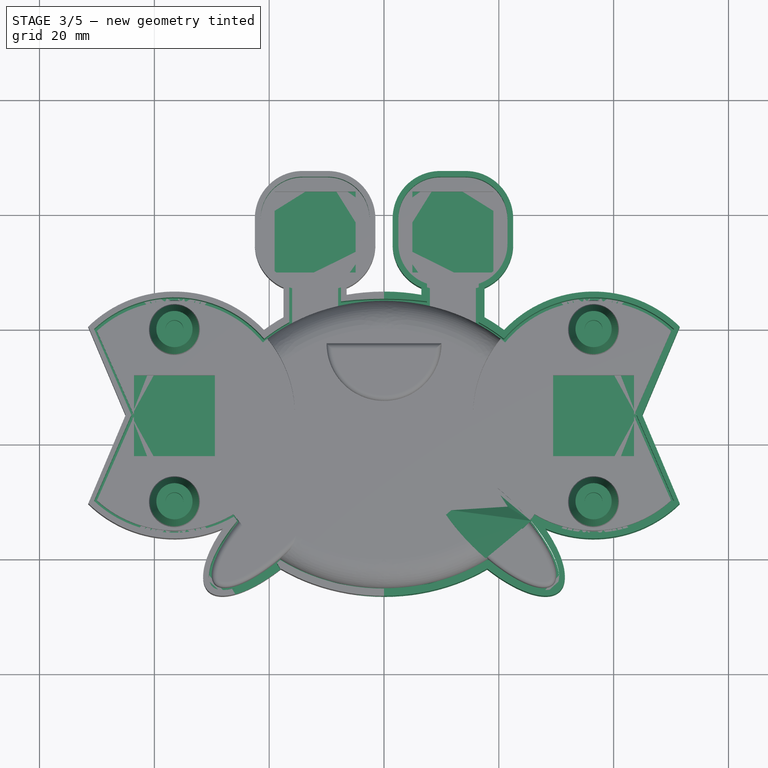
[diagram: stage 3 of 5 — top view after this stage's code; geometry added in this stage tinted green]
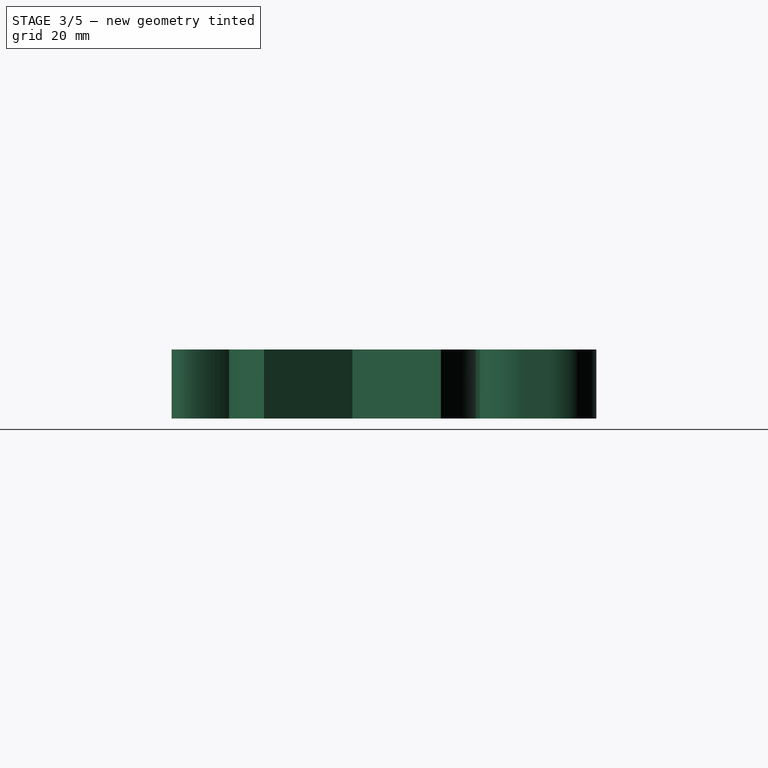
[diagram: stage 3 of 5 — right view after this stage's code; geometry added in this stage tinted green]
FEATURE [Sketcher::SketchObject] Sketch012
  FullyConstrained = false
  MapMode = 5
  Placement = pos=(0,0,12) rot=(0,0,1;0rad)
  Support = -> [Pad006]
  expr: Constraints[16] = 10mm + Spreadsheet.gap
  expr: Constraints[29] = 60mm + Spreadsheet.gap
  expr: Constraints[73] = 3mm - Spreadsheet.gap
  expr: Constraints[6] = 20mm + Spreadsheet.gap
  expr: Constraints[85] = 30mm + Spreadsheet.gap
  expr: Constraints[36] = 60mm + Spreadsheet.gap
  expr: Constraints[5] = 7mm + Spreadsheet.gap
  expr: Constraints[63] = 6.8mm + Spreadsheet.gap
  expr: Constraints[87] = 60mm + Spreadsheet.gap
  expr: Constraints[71] = 8mm + Spreadsheet.gap + Spreadsheet.gap
  expr: Constraints[15] = 30mm + Spreadsheet.gap
  expr: Constraints[70] = 46mm + Spreadsheet.gap
  expr: Constraints[37] = 50mm + Spreadsheet.gap
  expr: Constraints[86] = 25mm + Spreadsheet.gap
  sketch-geometry (40):
    g0: LineSegment StartX=-50.5 StartY=19.975 StartZ=0 EndX=-44 EndY=5 EndZ=0
    g1: LineSegment StartX=-44 StartY=5 StartZ=0 EndX=-50.5 EndY=-9.97498 EndZ=0
    g2: ArcOfCircle CenterX=-36.5 CenterY=5 CenterZ=0 NormalX=0 NormalY=0 NormalZ=1 AngleXU=0 Radius=20.5 StartAngle=0.704236 EndAngle=2.32256
    g3: ArcOfCircle CenterX=-36.5 CenterY=5 CenterZ=0 NormalX=0 NormalY=0 NormalZ=1 AngleXU=0 Radius=20.5 StartAngle=3.96063 EndAngle=5.24169
    g4: ArcOfEllipse CenterX=-19.0955 CenterY=-14.0955 CenterZ=0 NormalX=0 NormalY=0 NormalZ=1 MajorRadius=15.25 MinorRadius=5.25 AngleXU=-2.35619 StartAngle=4.98761 EndAngle=7.61423
    g5: LineSegment StartX=-29.8789 StartY=-24.8789 StartZ=0 EndX=-8.31213 EndY=-3.31213 EndZ=0
    g6: LineSegment StartX=-15.3832 StartY=-17.8078 StartZ=0 EndX=-22.8078 EndY=-10.3832 EndZ=0
    g7: GeomPoint X=-29.2197 Y=-24.2197 Z=0
    g8: GeomPoint X=-8.97128 Y=-3.97128 Z=0
    g9: ArcOfEllipse CenterX=0 CenterY=0 CenterZ=0 NormalX=0 NormalY=0 NormalZ=1 MajorRadius=30.25 MinorRadius=25.25 AngleXU=0 StartAngle=4.07301 EndAngle=4.71239
    g10: LineSegment StartX=30.25 StartY=0 StartZ=0 EndX=-30.25 EndY=0 EndZ=0
    g11: GeomPoint X=16.6583 Y=0 Z=0
    g12: GeomPoint X=-16.6583 Y=0 Z=0
    g13: ArcOfEllipse CenterX=0 CenterY=0 CenterZ=0 NormalX=0 NormalY=0 NormalZ=1 MajorRadius=30.25 MinorRadius=25.25 AngleXU=0 StartAngle=3.66838 EndAngle=3.70351
    g14: LineSegment StartX=30.25 StartY=0 StartZ=0 EndX=-30.25 EndY=0 EndZ=0
    g15: GeomPoint X=16.6583 Y=0 Z=0
    g16: GeomPoint X=-16.6583 Y=0 Z=0
    g17: ArcOfEllipse CenterX=0 CenterY=0 CenterZ=0 NormalX=0 NormalY=0 NormalZ=1 MajorRadius=30.25 MinorRadius=25.25 AngleXU=0 StartAngle=2.14773 EndAngle=2.33248
    g18: LineSegment StartX=30.25 StartY=0 StartZ=0 EndX=-30.25 EndY=0 EndZ=0
    g19: LineSegment StartX=2.3e-15 StartY=25.25 StartZ=0 EndX=-5.6e-15 EndY=-25.25 EndZ=0
    g20: GeomPoint X=16.6583 Y=0 Z=0
    g21: GeomPoint X=-16.6583 Y=0 Z=0
    g22: LineSegment StartX=-16.5 StartY=21.163 StartZ=0 EndX=-16.5 EndY=27.8718 EndZ=0
    g23: ArcOfCircle CenterX=-14.2 CenterY=39.2 CenterZ=0 NormalX=0 NormalY=0 NormalZ=1 AngleXU=0 Radius=7.3 StartAngle=1.5708 EndAngle=3.14159
    g24: ArcOfCircle CenterX=-9.8 CenterY=39.2 CenterZ=0 NormalX=0 NormalY=0 NormalZ=1 AngleXU=0 Radius=7.3 StartAngle=1e-16 EndAngle=1.5708
    g25: ArcOfCircle CenterX=-9.8 CenterY=34.8 CenterZ=0 NormalX=0 NormalY=0 NormalZ=1 AngleXU=0 Radius=7.3 StartAngle=5.03292 EndAngle=6.28319
    g26: ArcOfCircle CenterX=-14.2 CenterY=34.8 CenterZ=0 NormalX=0 NormalY=0 NormalZ=1 AngleXU=0 Radius=7.3 StartAngle=3.14159 EndAngle=4.39186
    g27: LineSegment StartX=-14.2 StartY=46.5 StartZ=0 EndX=-9.8 EndY=46.5 EndZ=0
    g28: LineSegment StartX=-2.5 StartY=39.2 StartZ=0 EndX=-2.5 EndY=34.8 EndZ=0
    g29: LineSegment StartX=-21.5 StartY=39.2 StartZ=0 EndX=-21.5 EndY=34.8 EndZ=0
    g30: LineSegment StartX=-7.5 StartY=27.8718 StartZ=0 EndX=-7.5 EndY=24.7884 EndZ=0
    g31: ArcOfEllipse CenterX=0 CenterY=0 CenterZ=0 NormalX=0 NormalY=0 NormalZ=1 MajorRadius=39.4034 MinorRadius=25.25 AngleXU=0 StartAngle=1.5708 EndAngle=1.7623
    g32: LineSegment StartX=0 StartY=25.25 StartZ=0 EndX=0 EndY=-25.25 EndZ=0
    g33: GeomPoint X=30.25 Y=0 Z=0
    g34: GeomPoint X=-30.25 Y=0 Z=0
    g35: LineSegment StartX=-30.5 StartY=-25.5 StartZ=0 EndX=-20.5 EndY=-25.5 EndZ=0
    g36: LineSegment StartX=-30.5 StartY=-25.5 StartZ=0 EndX=-30.5 EndY=-35.5 EndZ=0
    g37: GeomPoint X=-28.0832 Y=-25.5 Z=0
    g38: GeomPoint X=-30.5 Y=-23.0832 Z=0
    g39: LineSegment StartX=2.3e-15 StartY=25.25 StartZ=0 EndX=-5.6e-15 EndY=-25.25 EndZ=0
  constraints (90):
    c: Coincident(g1,g0)
    c: Coincident(g2,g0)
    c: Coincident(g3,g2)
    c: Coincident(g3,g1)
    c: Horizontal(g2,g0)
    c: DistanceX(g0,g2) = 7.5
    c: Radius(g2) = 20.5
    c: DistanceY(g-1,g2) = 5
    c: DistanceX(g2,g-1) = 36.5
    c: Vertical(g1,g0)
    c: DistanceX(g0,g0) = 6.5
    c: InternalAlignment(g5-g8 -> g4) x4
    c: Distance(g5) = 30.5
    c: Distance(g6) = 10.5
    c: Angle(g-1,g5) = 0.785398
    c: Equal(g0,g1)
    c: InternalAlignment(g10,g9)
    c: InternalAlignment(g11,g9)
    c: InternalAlignment(g12,g9)
    c: Horizontal(g10)
    c: Coincident(g9,g-1)
    c: Coincident(g9,g4)
    c: PointOnObject(g9,g-2)
    c: InternalAlignment(g14,g13)
    c: InternalAlignment(g15,g13)
    c: InternalAlignment(g16,g13)
    c: DistanceX(g14,g14) = 60.5
    c: Coincident(g3,g13)
    c: Coincident(g13,g4)
    c: InternalAlignment(g18-g21 -> g17) x4
    c: DistanceX(g18,g18) = 60.5
    c: DistanceY(g19,g19) = 50.5
    c: Coincident(g17,g9)
    c: Coincident(g2,g17)
    c: Coincident(g22,g17)
    c: Vertical(g22)
    c: Horizontal(g26,g26)
    c: Horizontal(g25,g25)
    c: Vertical(g26,g23)
    c: Vertical(g23,g23)
    c: Vertical(g24,g24)
    c: Vertical(g24,g25)
    c: Horizontal(g24,g24)
    c: Horizontal(g24,g23)
    c: Horizontal(g23,g23)
    c: Horizontal(g25,g26)
    c: Coincident(g27,g23)
    c: Coincident(g27,g24)
    c: Coincident(g28,g24)
    c: Coincident(g28,g25)
    c: Coincident(g29,g23)
    c: Coincident(g29,g26)
    c: Vertical(g29)
    c: Horizontal(g27)
    c: Vertical(g28)
    c: Equal(g27,g28)
    c: DistanceX(g27,g27) = 4.4
    c: DistanceY(g24,g24) = 7.3
    c: Coincident(g26,g22)
    c: Coincident(g30,g25)
    c: Vertical(g30)
    c: InternalAlignment(g33,g31)
    c: InternalAlignment(g34,g31)
    c: Coincident(g31,g30)
    c: DistanceY(g9,g24) = 46.5
    c: DistanceX(g22,g25) = 9
    c: Horizontal(g22,g25)
    c: DistanceX(g25,g31) = 2.5
    c: Coincident(g31,g9)
    c: Coincident(g33,g14)
    c: Horizontal(g35)
    c: Coincident(g36,g35)
    c: Vertical(g36)
    c: PointOnObject(g37,g4)
    c: PointOnObject(g37,g35)
    c: Tangent(g4,g35,g37) = -1.5708
    c: PointOnObject(g38,g4)
    c: PointOnObject(g38,g36)
    c: Tangent(g4,g36,g38) = -1.5708
    c: DistanceX(g35,g9) = 30.5
    c: DistanceY(g35,g9) = 25.5
    c: DistanceX(g10,g10) = 60.5
    c: Equal(g35,g36)
    c: DistanceX(g35,g35) = 10
    c: Coincident(g19,g9)
    c: Coincident(g13,g9)
    c: Coincident(g19,g31)
    c: Coincident(g15,g11)
    c: Coincident(g39,g31)
    c: Coincident(g39,g9)
FEATURE [PartDesign::Pocket] Pocket005
  BaseFeature = -> Pad006
  Length = 10
  Length2 = 100
  Profile = -> Sketch012
  Type = 0
FEATURE [PartDesign::Mirrored] Mirrored
  BaseFeature = -> Pocket005
  MirrorPlane = -> Sketch011 [V_Axis]
  Originals = -> [Pad006]
FEATURE [PartDesign::Mirrored] Mirrored001
  BaseFeature = -> Mirrored
  MirrorPlane = -> Sketch012 [V_Axis]
  Originals = -> [Pocket005]
FEATURE [Sketcher::SketchObject] Sketch013
  FullyConstrained = true
  MapMode = 5
  Placement = pos=(0,0,2) rot=(0,0,1;0rad)
  Support = -> [Mirrored001]
  sketch-geometry (11):
    g0: LineSegment StartX=0 StartY=0 StartZ=0 EndX=0 EndY=5 EndZ=0
    g1: LineSegment StartX=0 StartY=5 StartZ=0 EndX=36.5 EndY=5 EndZ=0
    g2: LineSegment StartX=0 StartY=5 StartZ=0 EndX=-36.5 EndY=5 EndZ=0
    g3: LineSegment StartX=-36.5 StartY=5 StartZ=0 EndX=-36.5 EndY=-10 EndZ=0
    g4: LineSegment StartX=-36.5 StartY=5 StartZ=0 EndX=-36.5 EndY=20 EndZ=0
    g5: LineSegment StartX=36.5 StartY=5 StartZ=0 EndX=36.5 EndY=20 EndZ=0
    g6: LineSegment StartX=36.5 StartY=5 StartZ=0 EndX=36.5 EndY=-10 EndZ=0
    g7: Circle CenterX=-36.5 CenterY=-10 CenterZ=0 NormalX=0 NormalY=0 NormalZ=1 AngleXU=0 Radius=3.15
    g8: Circle CenterX=-36.5 CenterY=20 CenterZ=0 NormalX=0 NormalY=0 NormalZ=1 AngleXU=0 Radius=3.15
    g9: Circle CenterX=36.5 CenterY=20 CenterZ=0 NormalX=0 NormalY=0 NormalZ=1 AngleXU=0 Radius=3.15
    g10: Circle CenterX=36.5 CenterY=-10 CenterZ=0 NormalX=0 NormalY=0 NormalZ=1 AngleXU=0 Radius=3.15
  constraints (29):
    c: Coincident(g0,g-1)
    c: Vertical(g0)
    c: DistanceY(g0,g0) = 5
    c: Coincident(g1,g0)
    c: Horizontal(g1)
    c: Coincident(g2,g0)
    c: Horizontal(g2)
    c: Equal(g2,g1)
    c: DistanceX(g2,g2) = 36.5
    c: Coincident(g3,g2)
    c: Vertical(g3)
    c: Coincident(g4,g2)
    c: Vertical(g4)
    c: Coincident(g5,g1)
    c: Vertical(g5)
    c: Coincident(g6,g1)
    c: Vertical(g6)
    c: Equal(g3,g4)
    c: Equal(g4,g5)
    c: Equal(g5,g6)
    c: DistanceY(g3,g3) = 15
    c: Coincident(g7,g3)
    c: Coincident(g8,g4)
    c: Coincident(g9,g5)
    c: Coincident(g10,g6)
    c: Equal(g8,g7)
    c: Equal(g7,g10)
    c: Equal(g10,g9)
    c: Diameter(g8) = 6.3
FEATURE [PartDesign::Pad] Pad007
  BaseFeature = -> Mirrored001
  Direction = (1,1,1)
  Length = 8.4
  Length2 = 100
  Profile = -> Sketch013
  Type = 0
FEATURE [PartDesign::Chamfer] Chamfer
  Angle = 72
  Base = -> Pad007 [Edge217,Edge216,Edge218,Edge215]
  BaseFeature = -> Pad007
  ChamferType = 1
  FlipDirection = false
  Size = 2
  Size2 = 8.39
  SupportTransform = false
FEATURE [Sketcher::SketchObject] Sketch014
  ExternalGeometry = -> [Chamfer]
  FullyConstrained = true
  MapMode = 5
  Placement = pos=(0,0,10.4) rot=(0,0,1;0rad)
  Support = -> [Chamfer]
  sketch-geometry (4):
    g0: Circle CenterX=-36.5 CenterY=20 CenterZ=0 NormalX=0 NormalY=0 NormalZ=1 AngleXU=0 Radius=1.55
    g1: Circle CenterX=-36.5 CenterY=-10 CenterZ=0 NormalX=0 NormalY=0 NormalZ=1 AngleXU=0 Radius=1.55
    g2: Circle CenterX=36.5 CenterY=-10 CenterZ=0 NormalX=0 NormalY=0 NormalZ=1 AngleXU=0 Radius=1.55
    g3: Circle CenterX=36.5 CenterY=20 CenterZ=0 NormalX=0 NormalY=0 NormalZ=1 AngleXU=0 Radius=1.55
  constraints (8):
    c: Coincident(g0,g-3)
    c: Coincident(g1,g-4)
    c: Coincident(g2,g-5)
    c: Coincident(g3,g-6)
    c: Equal(g3,g2)
    c: Equal(g2,g1)
    c: Equal(g1,g0)
    c: Diameter(g0) = 3.1
FEATURE [PartDesign::Pocket] Pocket006
  BaseFeature = -> Chamfer
  Length = 5
  Length2 = 100
  Profile = -> Sketch014
  Type = 0
FEATURE [Sketcher::SketchObject] Sketch027
  FullyConstrained = true
  MapMode = 5
  Placement = pos=(0,0,0) rot=(1,0,0;1.5708rad)
  Support = -> [XZ_Plane002]
  sketch-geometry (6):
    g0: ArcOfCircle CenterX=-2.75 CenterY=4.25 CenterZ=0 NormalX=0 NormalY=0 NormalZ=1 AngleXU=0 Radius=2.25 StartAngle=1.5708 EndAngle=4.71239
    g1: ArcOfCircle CenterX=2.75 CenterY=4.25 CenterZ=0 NormalX=0 NormalY=0 NormalZ=1 AngleXU=0 Radius=2.25 StartAngle=4.71239 EndAngle=7.85398
    g2: LineSegment StartX=-2.75 StartY=2 StartZ=0 EndX=2.75 EndY=2 EndZ=0
    g3: LineSegment StartX=-2.75 StartY=6.5 StartZ=0 EndX=2.75 EndY=6.5 EndZ=0
    g4: LineSegment StartX=-2.75 StartY=2 StartZ=0 EndX=0 EndY=0 EndZ=0
    g5: LineSegment StartX=2.75 StartY=2 StartZ=0 EndX=0 EndY=2e-16 EndZ=0
  constraints (14):
    c: Tangent(g0,g3) = 1.5708
    c: Tangent(g0,g2) = -1.5708
    c: Tangent(g2,g1) = -1.5708
    c: Tangent(g3,g1) = 1.5708
    c: Horizontal(g2)
    c: Equal(g0,g1)
    c: DistanceX(g0,g1) = 5.5
    c: DistanceY(g1,g1) = 4.5
    c: Coincident(g4,g0)
    c: Coincident(g4,g-1)
    c: Coincident(g5,g1)
    c: Coincident(g5,g-1)
    c: Equal(g5,g4)
    c: DistanceY(g-1,g0) = 2
FEATURE [PartDesign::Pocket] Pocket015
  BaseFeature = -> Pocket006
  Length = 30
  Length2 = 100
  Profile = -> Sketch027
  Reversed = true
  Type = 0
FEATURE [Sketcher::SketchObject] Sketch028
  FullyConstrained = false
  MapMode = 5
  Placement = pos=(0,0,12) rot=(0,0,1;0rad)
  Support = -> [Pocket015]
  sketch-geometry (4):
    g0: LineSegment StartX=-19.35 StartY=-19.6083 StartZ=0 EndX=-17.3176 EndY=-23.0535 EndZ=0
    g1: LineSegment StartX=-17.3176 StartY=-23.0535 StartZ=0 EndX=-25.0693 EndY=-27.6263 EndZ=0
    g2: LineSegment StartX=-25.0693 StartY=-27.6263 StartZ=0 EndX=-27.1017 EndY=-24.1811 EndZ=0
    g3: LineSegment StartX=-27.1017 StartY=-24.1811 StartZ=0 EndX=-19.35 EndY=-19.6083 EndZ=0
  constraints (9):
    c: Coincident(g1,g0)
    c: Coincident(g2,g1)
    c: Coincident(g3,g2)
    c: Coincident(g3,g0)
    c: Parallel(g1,g3)
    c: Parallel(g2,g0)
    c: Angle(g1,g2) = 1.5708
    c: Distance(g1) = 9
    c: Distance(g0) = 4
FEATURE [PartDesign::Pocket] Pocket016
  BaseFeature = -> Pocket015
  Length = 6
  Length2 = 100
  Profile = -> Sketch028
  Type = 0
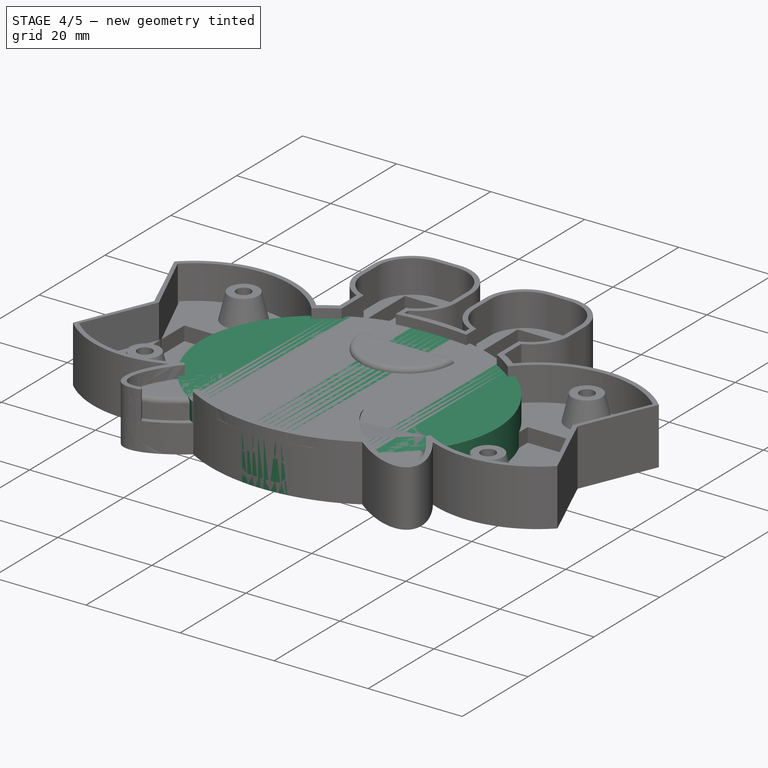
[diagram: stage 4 of 5 — iso view after this stage's code; geometry added in this stage tinted green]
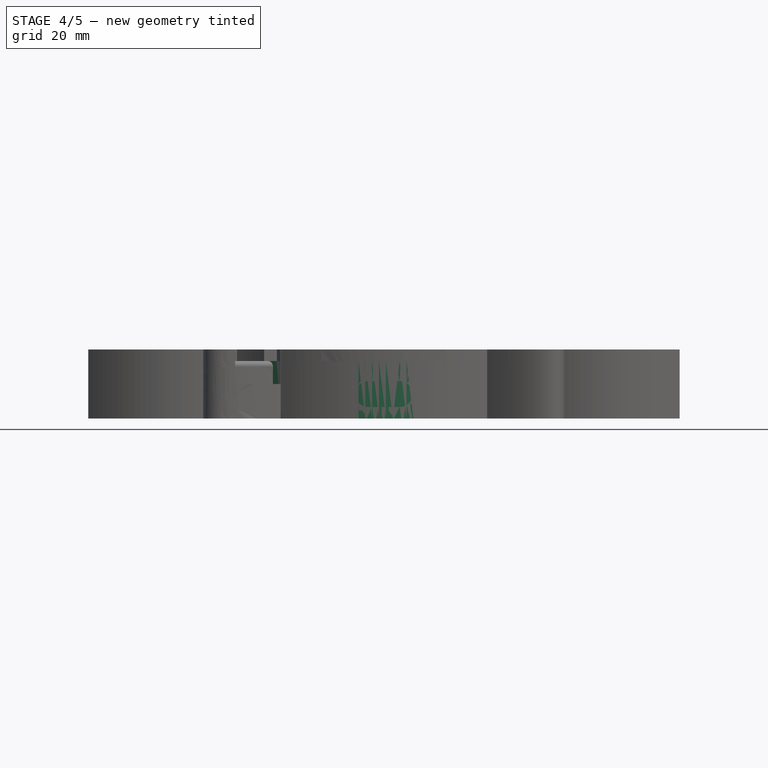
[diagram: stage 4 of 5 — front view after this stage's code; geometry added in this stage tinted green]
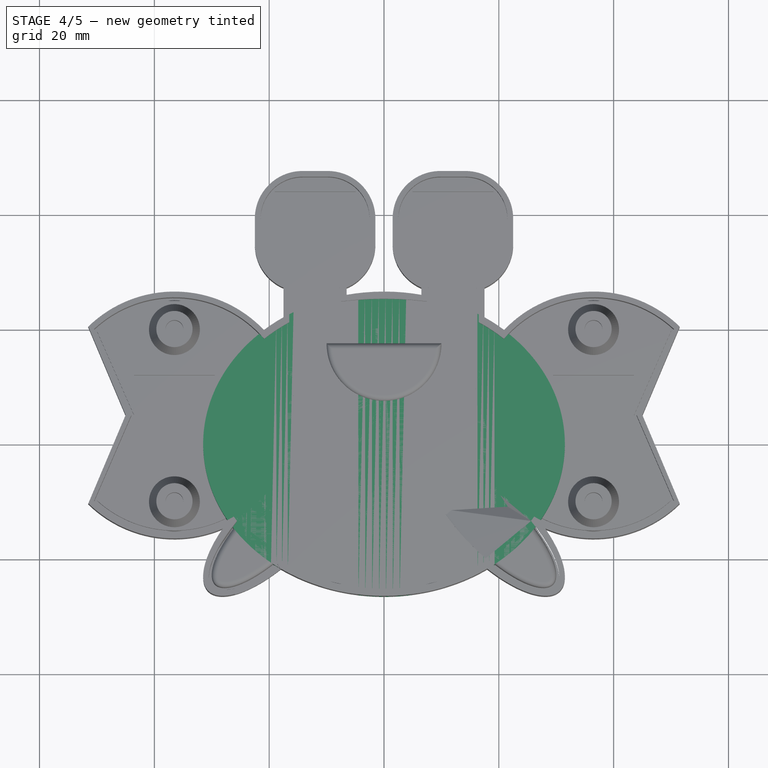
[diagram: stage 4 of 5 — top view after this stage's code; geometry added in this stage tinted green]
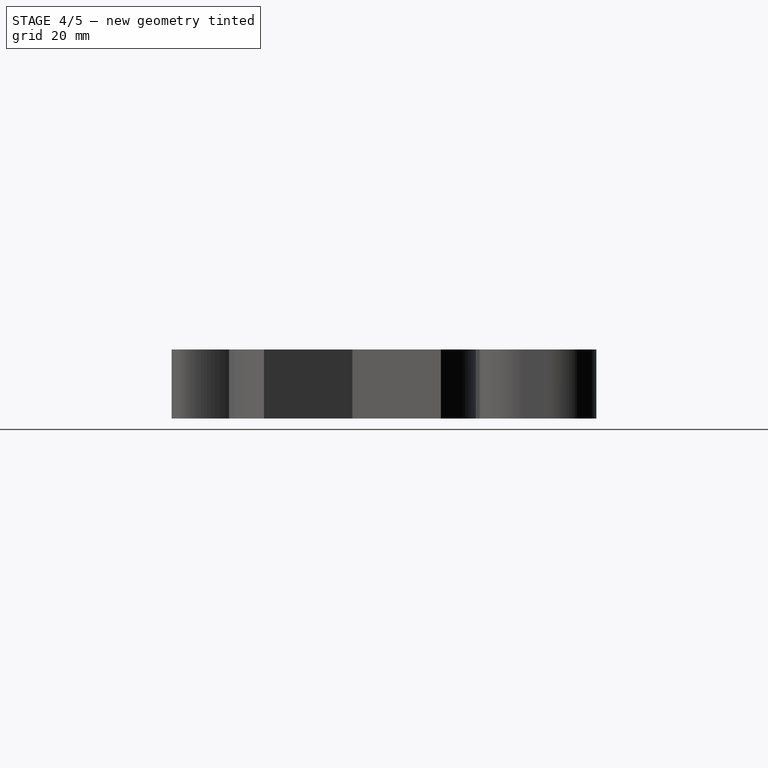
[diagram: stage 4 of 5 — right view after this stage's code; geometry added in this stage tinted green]
FEATURE [Sketcher::SketchObject] Sketch
  FullyConstrained = true
  MapMode = 5
  Support = -> [XY_Plane]
  sketch-geometry (5):
    g0: Ellipse CenterX=0 CenterY=0 CenterZ=0 NormalX=0 NormalY=0 NormalZ=1 MajorRadius=31.5 MinorRadius=26.5 AngleXU=0
    g1: LineSegment StartX=31.5 StartY=0 StartZ=0 EndX=-31.5 EndY=0 EndZ=0
    g2: LineSegment StartX=0 StartY=26.5 StartZ=0 EndX=0 EndY=-26.5 EndZ=0
    g3: GeomPoint X=17.0294 Y=0 Z=0
    g4: GeomPoint X=-17.0294 Y=0 Z=0
  constraints (5):
    c: InternalAlignment(g1-g4 -> g0) x4
    c: Horizontal(g1)
    c: DistanceY(g2,g2) = 53
    c: DistanceX(g1,g1) = 63
    c: Coincident(g0,g-1)
FEATURE [PartDesign::Pad] Pad
  Direction = (1,1,1)
  Length = 10
  Length2 = 100
  Profile = -> Sketch
  Type = 0
FEATURE [Sketcher::SketchObject] Sketch022
  FullyConstrained = true
  MapMode = 5
  Support = -> [XY_Plane003]
  sketch-geometry (1):
    g0: Circle CenterX=0 CenterY=0 CenterZ=0 NormalX=0 NormalY=0 NormalZ=1 AngleXU=0 Radius=20
  constraints (2):
    c: Radius(g0) = 20
    c: Coincident(g0,g-1)
FEATURE [PartDesign::Pad] Pad011
  Direction = (1,1,1)
  Length = 10
  Length2 = 100
  Profile = -> Sketch022
  Type = 0
FEATURE [Sketcher::SketchObject] Sketch021
  FullyConstrained = true
  MapMode = 5
  Placement = pos=(0,0,0) rot=(1,0,0;3.14159rad)
  Support = -> [Pad011]
  expr: Constraints[33] = (4.4 - 1.3) / 2
  sketch-geometry (15):
    g0: LineSegment StartX=-0.65 StartY=-2.2 StartZ=0 EndX=0.65 EndY=-2.2 EndZ=0
    g1: LineSegment StartX=0.65 StartY=-2.2 StartZ=0 EndX=0.65 EndY=-0.65 EndZ=0
    g2: LineSegment StartX=0.65 StartY=-0.65 StartZ=0 EndX=2.2 EndY=-0.65 EndZ=0
    g3: LineSegment StartX=2.2 StartY=-0.65 StartZ=0 EndX=2.2 EndY=0.65 EndZ=0
    g4: LineSegment StartX=2.2 StartY=0.65 StartZ=0 EndX=0.65 EndY=0.65 EndZ=0
    g5: LineSegment StartX=0.65 StartY=0.65 StartZ=0 EndX=0.65 EndY=2.2 EndZ=0
    g6: LineSegment StartX=0.65 StartY=2.2 StartZ=0 EndX=-0.65 EndY=2.2 EndZ=0
    g7: LineSegment StartX=-0.65 StartY=2.2 StartZ=0 EndX=-0.65 EndY=0.65 EndZ=0
    g8: LineSegment StartX=-0.65 StartY=0.65 StartZ=0 EndX=-2.2 EndY=0.65 EndZ=0
    g9: LineSegment StartX=-2.2 StartY=0.65 StartZ=0 EndX=-2.2 EndY=-0.65 EndZ=0
    g10: LineSegment StartX=-2.2 StartY=-0.65 StartZ=0 EndX=-0.65 EndY=-0.65 EndZ=0
    g11: LineSegment StartX=-0.65 StartY=-0.65 StartZ=0 EndX=-0.65 EndY=-2.2 EndZ=0
    g12: LineSegment StartX=-0.65 StartY=-0.65 StartZ=0 EndX=0 EndY=0 EndZ=0
    g13: LineSegment StartX=0 StartY=0 StartZ=0 EndX=0.65 EndY=-0.65 EndZ=0
    g14: LineSegment StartX=0 StartY=0 StartZ=0 EndX=0.65 EndY=0.65 EndZ=0
  constraints (42):
    c: Horizontal(g0)
    c: Coincident(g1,g0)
    c: Vertical(g1)
    c: Coincident(g2,g1)
    c: Horizontal(g2)
    c: Coincident(g3,g2)
    c: Vertical(g3)
    c: Coincident(g4,g3)
    c: Horizontal(g4)
    c: Coincident(g5,g4)
    c: Vertical(g5)
    c: Coincident(g6,g5)
    c: Horizontal(g6)
    c: Coincident(g7,g6)
    c: Vertical(g7)
    c: Coincident(g8,g7)
    c: Horizontal(g8)
    c: Coincident(g9,g8)
    c: Vertical(g9)
    c: Coincident(g10,g9)
    c: Horizontal(g10)
    c: Coincident(g11,g10)
    c: Coincident(g11,g0)
    c: Equal(g6,g0)
    c: Equal(g0,g9)
    c: Equal(g9,g3)
    c: Equal(g8,g10)
    c: Equal(g10,g11)
    c: Equal(g11,g1)
    c: Equal(g1,g2)
    c: Equal(g2,g4)
    c: Equal(g4,g5)
    c: DistanceY(g3,g3) = 1.3
    c: DistanceY(g5,g5) = 1.55
    c: Coincident(g12,g10)
    c: Coincident(g12,g-1)
    c: Coincident(g13,g-1)
    c: Coincident(g13,g1)
    c: Coincident(g14,g-1)
    c: Coincident(g14,g4)
    c: Equal(g12,g13)
    c: Equal(g13,g14)
FEATURE [PartDesign::Pocket] Pocket009
  BaseFeature = -> Pad011
  Length = 6
  Length2 = 100
  Profile = -> Sketch021
  Type = 0
FEATURE [Sketcher::SketchObject] Sketch020
  FullyConstrained = true
  MapMode = 5
  Placement = pos=(0,0,0) rot=(1,0,0;3.14159rad)
  Support = -> [Pocket009]
  sketch-geometry (14):
    g0: LineSegment StartX=-3.3 StartY=2.75 StartZ=0 EndX=-3.3 EndY=-2.75 EndZ=0
    g1: LineSegment StartX=-3.3 StartY=-2.75 StartZ=0 EndX=3.3 EndY=-2.75 EndZ=0
    g2: LineSegment StartX=3.3 StartY=-2.75 StartZ=0 EndX=3.3 EndY=2.75 EndZ=0
    g3: LineSegment StartX=-3.3 StartY=2.75 StartZ=0 EndX=3.3 EndY=2.75 EndZ=0
    g4: LineSegment StartX=-8 StartY=8 StartZ=0 EndX=-8 EndY=-8 EndZ=0
    g5: LineSegment StartX=-8 StartY=-8 StartZ=0 EndX=8 EndY=-8 EndZ=0
    g6: LineSegment StartX=8 StartY=-8 StartZ=0 EndX=8 EndY=8 EndZ=0
    g7: LineSegment StartX=-8 StartY=8 StartZ=0 EndX=8 EndY=8 EndZ=0
    g8: LineSegment StartX=-8 StartY=-8 StartZ=0 EndX=-3.3 EndY=-2.75 EndZ=0
    g9: LineSegment StartX=-3.3 StartY=-2.75 StartZ=0 EndX=0 EndY=0 EndZ=0
    g10: LineSegment StartX=0 StartY=0 StartZ=0 EndX=3.3 EndY=-2.75 EndZ=0
    g11: LineSegment StartX=3.3 StartY=-2.75 StartZ=0 EndX=8 EndY=-8 EndZ=0
    g12: LineSegment StartX=0 StartY=0 StartZ=0 EndX=3.3 EndY=2.75 EndZ=0
    g13: LineSegment StartX=3.3 StartY=2.75 StartZ=0 EndX=8 EndY=8 EndZ=0
  constraints (36):
    c: Vertical(g0)
    c: Coincident(g1,g0)
    c: Horizontal(g1)
    c: Coincident(g2,g1)
    c: Vertical(g2)
    c: Coincident(g3,g0)
    c: Coincident(g3,g2)
    c: Horizontal(g3)
    c: DistanceY(g2,g2) = 5.5
    c: DistanceX(g3,g3) = 6.6
    c: Vertical(g4)
    c: Coincident(g5,g4)
    c: Horizontal(g5)
    c: Coincident(g6,g5)
    c: Vertical(g6)
    c: Coincident(g7,g4)
    c: Coincident(g7,g6)
    c: Horizontal(g7)
    c: Equal(g6,g5)
    c: DistanceY(g6,g6) = 16
    c: Coincident(g8,g4)
    c: Coincident(g8,g0)
    c: Coincident(g9,g0)
    c: Coincident(g9,g-1)
    c: Coincident(g10,g-1)
    c: Coincident(g10,g1)
    c: Coincident(g11,g1)
    c: Coincident(g11,g5)
    c: Coincident(g12,g-1)
    c: Coincident(g12,g2)
    c: Coincident(g13,g2)
    c: Coincident(g13,g6)
    c: Equal(g13,g11)
    c: Equal(g11,g8)
    c: Equal(g10,g9)
    c: Equal(g9,g12)
FEATURE [PartDesign::Pocket] Pocket010
  BaseFeature = -> Pocket009
  Length = 6
  Length2 = 100
  Profile = -> Sketch020
  Type = 0
FEATURE [PartDesign::Chamfer] Chamfer002
  Angle = 45
  Base = -> Pocket010 [Edge2,Edge3]
  BaseFeature = -> Pocket010
  ChamferType = 0
  FlipDirection = false
  Size = 2
  Size2 = 1
  SupportTransform = false
FEATURE [Sketcher::SketchObject] Sketch023
  FullyConstrained = true
  MapMode = 5
  Placement = pos=(0,0,0) rot=(1,0,0;3.14159rad)
  Support = -> [Chamfer002]
  sketch-geometry (1):
    g0: Circle CenterX=0 CenterY=0 CenterZ=0 NormalX=0 NormalY=0 NormalZ=1 AngleXU=0 Radius=6
  constraints (2):
    c: Coincident(g0,g-1)
    c: Radius(g0) = 6
FEATURE [PartDesign::Pocket] Pocket011
  BaseFeature = -> Chamfer002
  Length = 2.5
  Length2 = 100
  Profile = -> Sketch023
  Type = 0
FEATURE [PartDesign::Chamfer] Chamfer003
  Angle = 45
  Base = -> Pocket011 [Edge27,Edge29,Edge24,Edge31,Edge32,Edge43,Edge42,Edge41,Edge40,Edge39,Edge38,Edge37,Edge36,Edge35,Edge34,Edge33]
  BaseFeature = -> Pocket011
  ChamferType = 1
  FlipDirection = false
  Size = 0.25
  Size2 = 0.25
  SupportTransform = false
FEATURE [PartDesign::Chamfer] Chamfer004
  Angle = 45
  Base = -> Chamfer003 [Edge41,Edge39,Edge44,Edge43,Edge37,Edge38,Edge42,Edge40]
  BaseFeature = -> Chamfer003
  ChamferType = 0
  FlipDirection = false
  Size = 2
  Size2 = 1
  SupportTransform = false
FEATURE [Sketcher::SketchObject] Sketch024
  FullyConstrained = true
  MapMode = 5
  Support = -> [XY_Plane003]
  sketch-geometry (3):
    g0: LineSegment StartX=8e-16 StartY=7 StartZ=0 EndX=-14.7564 EndY=13.5 EndZ=0
    g1: LineSegment StartX=8e-16 StartY=7 StartZ=0 EndX=14.7564 EndY=13.5 EndZ=0
    g2: ArcOfCircle CenterX=0 CenterY=0 CenterZ=0 NormalX=0 NormalY=0 NormalZ=1 AngleXU=0 Radius=20 StartAngle=0.740965 EndAngle=2.40063
  constraints (9):
    c: Coincident(g1,g0)
    c: Equal(g0,g1)
    c: Coincident(g2,g-1)
    c: Coincident(g2,g0)
    c: Coincident(g2,g1)
    c: Radius(g2) = 20
    c: Distance(g0,g2) = 7
    c: Horizontal(g1,g0)
    c: DistanceY(g0,g1) = 6.5
FEATURE [PartDesign::Pocket] Pocket012
  BaseFeature = -> Chamfer004
  Length = 10
  Length2 = 100
  Profile = -> Sketch024
  Reversed = true
  Type = 0
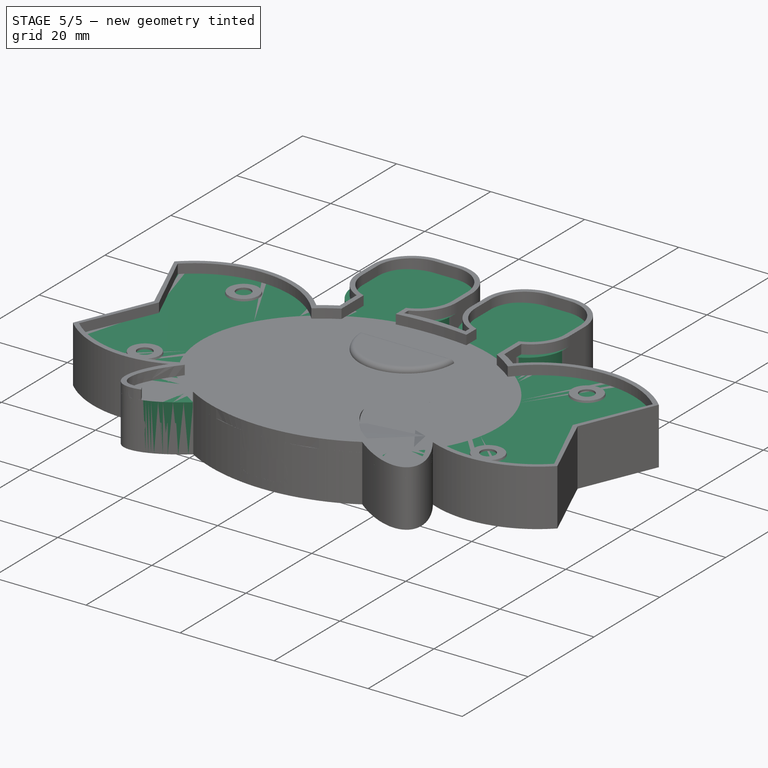
[diagram: stage 5 of 5 — iso view after this stage's code; geometry added in this stage tinted green]
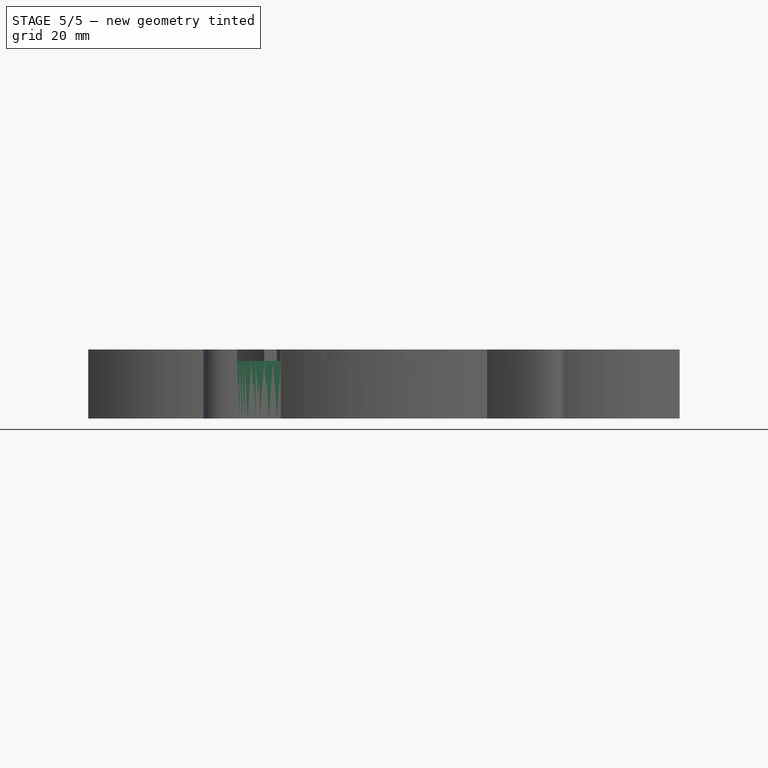
[diagram: stage 5 of 5 — front view after this stage's code; geometry added in this stage tinted green]
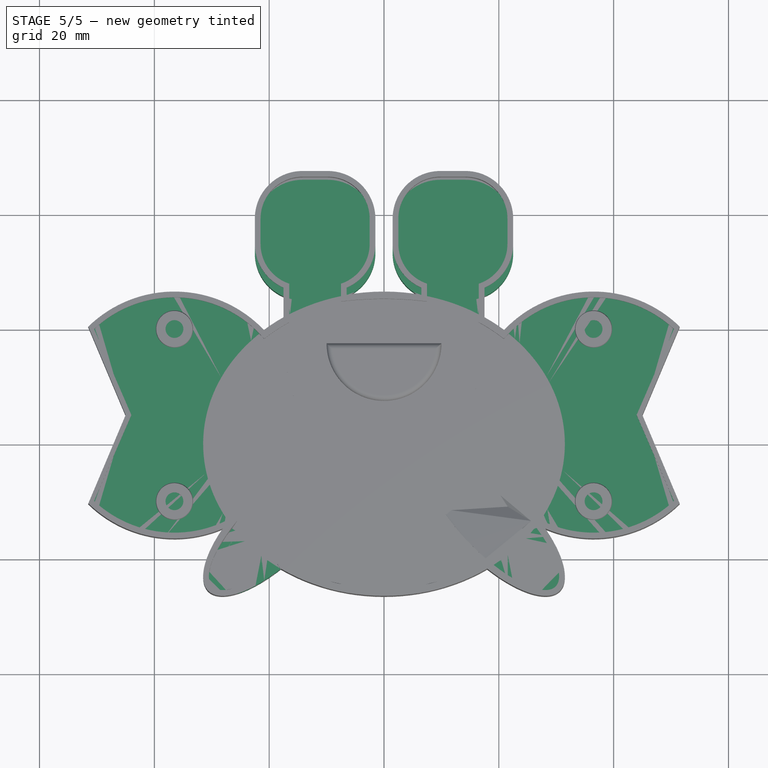
[diagram: stage 5 of 5 — top view after this stage's code; geometry added in this stage tinted green]
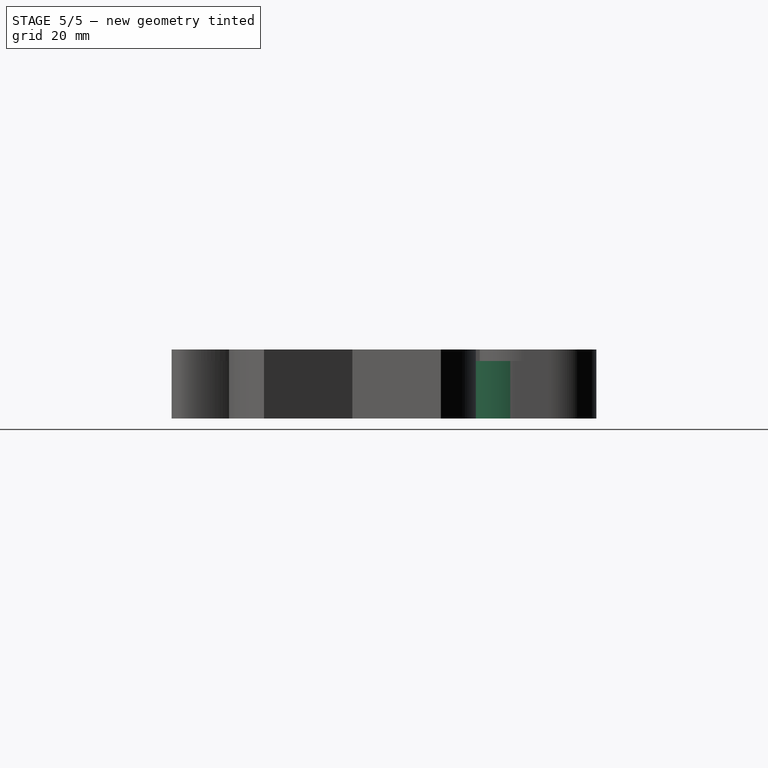
[diagram: stage 5 of 5 — right view after this stage's code; geometry added in this stage tinted green]
FEATURE [Sketcher::SketchObject] Sketch001
  FullyConstrained = true
  MapMode = 5
  Support = -> [XY_Plane]
  sketch-geometry (6):
    g0: LineSegment StartX=-51.5 StartY=20.4029 StartZ=0 EndX=-45 EndY=5 EndZ=0
    g1: LineSegment StartX=-45 StartY=5 StartZ=0 EndX=-51.5 EndY=-10.4029 EndZ=0
    g2: ArcOfCircle CenterX=-36.5 CenterY=5 CenterZ=0 NormalX=0 NormalY=0 NormalZ=1 AngleXU=0 Radius=21.5 StartAngle=3.94024 EndAngle=8.62613
    g3: LineSegment StartX=51.5 StartY=20.4029 StartZ=0 EndX=45 EndY=5 EndZ=0
    g4: LineSegment StartX=45 StartY=5 StartZ=0 EndX=51.5 EndY=-10.4029 EndZ=0
    g5: ArcOfCircle CenterX=36.5 CenterY=5 CenterZ=0 NormalX=0 NormalY=0 NormalZ=1 AngleXU=0 Radius=21.5 StartAngle=0.79865 EndAngle=5.48454
  constraints (20):
    c: Coincident(g1,g0)
    c: Coincident(g2,g0)
    c: Coincident(g2,g1)
    c: Vertical(g0,g1)
    c: Horizontal(g2,g0)
    c: DistanceX(g0,g2) = 8.5
    c: DistanceX(g0,g0) = 6.5
    c: Radius(g2) = 21.5
    c: DistanceX(g2,g-1) = 36.5
    c: DistanceY(g-1,g2) = 5
    c: Coincident(g4,g3)
    c: Coincident(g5,g3)
    c: Coincident(g5,g4)
    c: Vertical(g4,g3)
    c: Horizontal(g5,g3)
    c: DistanceX(g3,g4) = 6.5
    c: DistanceX(g5,g3) = 8.5
    c: DistanceX(g-1,g5) = 36.5
    c: DistanceY(g-1,g5) = 5
    c: Equal(g5,g2)
FEATURE [PartDesign::Pad] Pad001
  BaseFeature = -> Pad
  Direction = (1,1,1)
  Length = 10
  Length2 = 100
  Profile = -> Sketch001
  Type = 0
FEATURE [Sketcher::SketchObject] Sketch002
  FullyConstrained = true
  MapMode = 5
  Support = -> [XY_Plane]
  sketch-geometry (16):
    g0: LineSegment StartX=-14.2 StartY=46 StartZ=0 EndX=-9.8 EndY=46 EndZ=0
    g1: ArcOfCircle CenterX=-9.8 CenterY=37.7 CenterZ=0 NormalX=0 NormalY=0 NormalZ=1 AngleXU=0 Radius=8.3 StartAngle=0 EndAngle=1.5708
    g2: ArcOfCircle CenterX=-14.2 CenterY=37.7 CenterZ=0 NormalX=0 NormalY=0 NormalZ=1 AngleXU=0 Radius=8.3 StartAngle=1.5708 EndAngle=3.14159
    g3: LineSegment StartX=-22.5 StartY=37.7 StartZ=0 EndX=-22.5 EndY=33.3 EndZ=0
    g4: LineSegment StartX=-1.5 StartY=37.7 StartZ=0 EndX=-1.5 EndY=33.3 EndZ=0
    g5: ArcOfCircle CenterX=-14.2 CenterY=33.3 CenterZ=0 NormalX=0 NormalY=0 NormalZ=1 AngleXU=0 Radius=8.3 StartAngle=3.14159 EndAngle=4.71239
    g6: ArcOfCircle CenterX=-9.8 CenterY=33.3 CenterZ=0 NormalX=0 NormalY=0 NormalZ=1 AngleXU=0 Radius=8.3 StartAngle=4.71239 EndAngle=6.28319
    g7: LineSegment StartX=-14.2 StartY=25 StartZ=0 EndX=-9.8 EndY=25 EndZ=0
    g8: ArcOfCircle CenterX=9.8 CenterY=37.7 CenterZ=0 NormalX=0 NormalY=0 NormalZ=1 AngleXU=0 Radius=8.3 StartAngle=1.5708 EndAngle=3.14159
    g9: ArcOfCircle CenterX=14.2 CenterY=37.7 CenterZ=0 NormalX=0 NormalY=0 NormalZ=1 AngleXU=0 Radius=8.3 StartAngle=0 EndAngle=1.5708
    g10: ArcOfCircle CenterX=14.2 CenterY=33.3 CenterZ=0 NormalX=0 NormalY=0 NormalZ=1 AngleXU=0 Radius=8.3 StartAngle=4.71239 EndAngle=6.28319
    g11: ArcOfCircle CenterX=9.8 CenterY=33.3 CenterZ=0 NormalX=0 NormalY=0 NormalZ=1 AngleXU=0 Radius=8.3 StartAngle=3.14159 EndAngle=4.71239
    g12: LineSegment StartX=9.8 StartY=25 StartZ=0 EndX=14.2 EndY=25 EndZ=0
    g13: LineSegment StartX=9.8 StartY=46 StartZ=0 EndX=14.2 EndY=46 EndZ=0
    g14: LineSegment StartX=22.5 StartY=37.7 StartZ=0 EndX=22.5 EndY=33.3 EndZ=0
    g15: LineSegment StartX=1.5 StartY=37.7 StartZ=0 EndX=1.5 EndY=33.3 EndZ=0
  constraints (56):
    c: Horizontal(g0)
    c: Coincident(g1,g0)
    c: Coincident(g2,g0)
    c: Coincident(g3,g2)
    c: Vertical(g3)
    c: Coincident(g4,g1)
    c: Vertical(g4)
    c: Coincident(g5,g3)
    c: Coincident(g6,g4)
    c: Coincident(g7,g5)
    c: Coincident(g7,g6)
    c: Horizontal(g7)
    c: Horizontal(g2,g1)
    c: Vertical(g5,g5)
    c: Vertical(g5,g2)
    c: Vertical(g2,g0)
    c: Vertical(g1,g0)
    c: Vertical(g0,g6)
    c: Vertical(g6,g6)
    c: Equal(g6,g1)
    c: Horizontal(g2,g2)
    c: Horizontal(g1,g1)
    c: Horizontal(g3,g5)
    c: Equal(g0,g4)
    c: DistanceX(g0,g0) = 4.4
    c: DistanceY(g1,g0) = 8.3
    c: Coincident(g12,g11)
    c: Coincident(g12,g10)
    c: Coincident(g13,g8)
    c: Coincident(g13,g9)
    c: Horizontal(g13)
    c: Coincident(g14,g9)
    c: Coincident(g15,g8)
    c: Coincident(g15,g11)
    c: Vertical(g15)
    c: Equal(g8,g11)
    c: Equal(g11,g10)
    c: Equal(g10,g9)
    c: Equal(g14,g15)
    c: Equal(g15,g13)
    c: Equal(g13,g12)
    c: Vertical(g14)
    c: Coincident(g10,g14)
    c: Horizontal(g12)
    c: Horizontal(g8,g8)
    c: Horizontal(g8,g9)
    c: Horizontal(g9,g9)
    c: Horizontal(g11,g11)
    c: Horizontal(g11,g10)
    c: Vertical(g8,g8)
    c: Equal(g15,g4)
    c: Equal(g6,g11)
    c: DistanceX(g1,g8) = 3
    c: DistanceY(g-1,g8) = 46
    c: Horizontal(g6,g11)
    c: DistanceX(g-1,g11) = 1.5
FEATURE [PartDesign::Pad] Pad002
  BaseFeature = -> Pad001
  Direction = (1,1,1)
  Length = 10
  Length2 = 100
  Profile = -> Sketch002
  Type = 0
FEATURE [Sketcher::SketchObject] Sketch003
  FullyConstrained = true
  MapMode = 5
  Support = -> [XY_Plane]
  expr: Constraints[21] = 21 - 9 + 25
  sketch-geometry (8):
    g0: LineSegment StartX=6.5 StartY=37 StartZ=0 EndX=6.5 EndY=0 EndZ=0
    g1: LineSegment StartX=6.5 StartY=37 StartZ=0 EndX=17.5 EndY=37 EndZ=0
    g2: LineSegment StartX=17.5 StartY=37 StartZ=0 EndX=17.5 EndY=0 EndZ=0
    g3: LineSegment StartX=6.5 StartY=0 StartZ=0 EndX=17.5 EndY=0 EndZ=0
    g4: LineSegment StartX=-6.5 StartY=37 StartZ=0 EndX=-6.5 EndY=0 EndZ=0
    g5: LineSegment StartX=-6.5 StartY=0 StartZ=0 EndX=-17.5 EndY=0 EndZ=0
    g6: LineSegment StartX=-17.5 StartY=0 StartZ=0 EndX=-17.5 EndY=37 EndZ=0
    g7: LineSegment StartX=-17.5 StartY=37 StartZ=0 EndX=-6.5 EndY=37 EndZ=0
  constraints (24):
    c: Vertical(g0)
    c: Coincident(g1,g0)
    c: Horizontal(g1)
    c: Coincident(g2,g1)
    c: Vertical(g2)
    c: Coincident(g3,g0)
    c: Coincident(g3,g2)
    c: Horizontal(g3)
    c: DistanceX(g3,g3) = 11
    c: Coincident(g5,g4)
    c: Coincident(g6,g5)
    c: Coincident(g7,g6)
    c: Coincident(g7,g4)
    c: Horizontal(g7)
    c: Horizontal(g5)
    c: Vertical(g4)
    c: Vertical(g6)
    c: Equal(g5,g3)
    c: Horizontal(g4,g0)
    c: DistanceX(g4,g0) = 13
    c: Horizontal(g4,g0)
    c: DistanceY(g-1,g0) = 37
    c: DistanceX(g4,g-1) = 6.5
    c: DistanceY(g2,g2) = 37
FEATURE [PartDesign::Pad] Pad003
  BaseFeature = -> Pad002
  Direction = (1,1,1)
  Length = 10
  Length2 = 100
  Profile = -> Sketch003
  Type = 0
FEATURE [Sketcher::SketchObject] Sketch004
  FullyConstrained = true
  MapMode = 5
  Support = -> [XY_Plane]
  sketch-geometry (14):
    g0: Ellipse CenterX=-18.9601 CenterY=-13.9601 CenterZ=0 NormalX=0 NormalY=0 NormalZ=1 MajorRadius=16.5 MinorRadius=6.5 AngleXU=0.785398
    g1: LineSegment StartX=-7.2928 StartY=-2.2928 StartZ=0 EndX=-30.6273 EndY=-25.6273 EndZ=0
    g2: LineSegment StartX=-23.5563 StartY=-9.36387 StartZ=0 EndX=-14.3639 EndY=-18.5563 EndZ=0
    g3: GeomPoint X=-8.23626 Y=-3.23626 Z=0
    g4: GeomPoint X=-29.6839 Y=-24.6839 Z=0
    g5: LineSegment StartX=-31.5 StartY=-16.5 StartZ=0 EndX=-31.5 EndY=-26.5 EndZ=0
    g6: LineSegment StartX=-31.5 StartY=-26.5 StartZ=0 EndX=-21.5 EndY=-26.5 EndZ=0
    g7: Ellipse CenterX=18.9601 CenterY=-13.9601 CenterZ=0 NormalX=0 NormalY=0 NormalZ=1 MajorRadius=16.5 MinorRadius=6.5 AngleXU=-0.785398
    g8: LineSegment StartX=30.6273 StartY=-25.6273 StartZ=0 EndX=7.2928 EndY=-2.2928 EndZ=0
    g9: LineSegment StartX=23.5563 StartY=-9.36387 StartZ=0 EndX=14.3639 EndY=-18.5563 EndZ=0
    g10: GeomPoint X=29.6839 Y=-24.6839 Z=0
    g11: GeomPoint X=8.23626 Y=-3.23626 Z=0
    g12: LineSegment StartX=-7.2928 StartY=-2.2928 StartZ=0 EndX=0 EndY=0 EndZ=0
    g13: LineSegment StartX=0 StartY=0 StartZ=0 EndX=7.2928 EndY=-2.2928 EndZ=0
  constraints (23):
    c: InternalAlignment(g1-g4 -> g0) x4
    c: Angle(g-1,g1) = 0.785398
    c: Distance(g2) = 13
    c: Distance(g1) = 33
    c: Vertical(g5)
    c: Coincident(g6,g5)
    c: Horizontal(g6)
    c: Tangent(g0,g6)
    c: Tangent(g0,g5)
    c: Equal(g6,g5)
    c: DistanceX(g6,g6) = 10
    c: DistanceY(g5,g-1) = 26.5
    c: DistanceX(g5,g-1) = 31.5
    c: InternalAlignment(g8-g11 -> g7) x4
    c: Angle(g8,g-1) = 0.785398
    c: Equal(g8,g1)
    c: Equal(g9,g2)
    c: Horizontal(g0,g7)
    c: Coincident(g12,g1)
    c: Coincident(g12,g-1)
    c: Coincident(g13,g-1)
    c: Coincident(g13,g8)
    c: Equal(g13,g12)
FEATURE [PartDesign::Pad] Pad004
  BaseFeature = -> Pad003
  Direction = (1,1,1)
  Length = 10
  Length2 = 100
  Profile = -> Sketch004
  Type = 0
FEATURE [Sketcher::SketchObject] Sketch005
  FullyConstrained = true
  MapMode = 5
  Support = -> [XY_Plane]
  sketch-geometry (8):
    g0: LineSegment StartX=16.5 StartY=36 StartZ=0 EndX=7.5 EndY=36 EndZ=0
    g1: LineSegment StartX=16.5 StartY=1 StartZ=0 EndX=7.5 EndY=1 EndZ=0
    g2: LineSegment StartX=16.5 StartY=36 StartZ=0 EndX=16.5 EndY=1 EndZ=0
    g3: LineSegment StartX=7.5 StartY=1 StartZ=0 EndX=7.5 EndY=36 EndZ=0
    g4: LineSegment StartX=-7.5 StartY=36 StartZ=0 EndX=-7.5 EndY=1 EndZ=0
    g5: LineSegment StartX=-7.5 StartY=1 StartZ=0 EndX=-16.5 EndY=1 EndZ=0
    g6: LineSegment StartX=-16.5 StartY=1 StartZ=0 EndX=-16.5 EndY=36 EndZ=0
    g7: LineSegment StartX=-16.5 StartY=36 StartZ=0 EndX=-7.5 EndY=36 EndZ=0
  constraints (24):
    c: Vertical(g2)
    c: Horizontal(g1)
    c: Coincident(g1,g2)
    c: Coincident(g2,g0)
    c: Horizontal(g0)
    c: Coincident(g3,g1)
    c: Coincident(g3,g0)
    c: Vertical(g3)
    c: DistanceY(g-1,g0) = 36
    c: DistanceY(g3,g3) = 35
    c: DistanceX(g1,g1) = 9
    c: DistanceX(g-1,g1) = 7.5
    c: Vertical(g4)
    c: Coincident(g5,g4)
    c: Horizontal(g5)
    c: Coincident(g6,g5)
    c: Vertical(g6)
    c: Coincident(g7,g6)
    c: Coincident(g7,g4)
    c: Horizontal(g7)
    c: Equal(g7,g0)
    c: Equal(g4,g3)
    c: Horizontal(g4,g0)
    c: DistanceX(g4,g-1) = 7.5
FEATURE [PartDesign::Pocket] Pocket
  BaseFeature = -> Pad004
  Length = 8
  Length2 = 100
  Profile = -> Sketch005
  Reversed = true
  Type = 0
FEATURE [Sketcher::SketchObject] Sketch006
  FullyConstrained = true
  MapMode = 5
  Support = -> [XY_Plane]
  sketch-geometry (5):
    g0: Ellipse CenterX=0 CenterY=0 CenterZ=0 NormalX=0 NormalY=0 NormalZ=1 MajorRadius=30.5 MinorRadius=25.5 AngleXU=-3.14159
    g1: LineSegment StartX=-30.5 StartY=0 StartZ=0 EndX=30.5 EndY=0 EndZ=0
    g2: LineSegment StartX=0 StartY=-25.5 StartZ=0 EndX=0 EndY=25.5 EndZ=0
    g3: GeomPoint X=-16.7332 Y=0 Z=0
    g4: GeomPoint X=16.7332 Y=0 Z=0
  constraints (5):
    c: InternalAlignment(g1-g4 -> g0) x4
    c: Coincident(g0,g-1)
    c: DistanceY(g2,g2) = 51
    c: DistanceX(g1,g1) = 61
    c: PointOnObject(g3,g-1)
FEATURE [PartDesign::Pocket] Pocket001
  BaseFeature = -> Pocket
  Length = 8
  Length2 = 100
  Profile = -> Sketch006
  Reversed = true
  Type = 0
FEATURE [Sketcher::SketchObject] Sketch007
  FullyConstrained = true
  MapMode = 5
  Support = -> [XY_Plane]
  sketch-geometry (17):
    g0: ArcOfCircle CenterX=-9.98989 CenterY=37.7 CenterZ=0 NormalX=0 NormalY=0 NormalZ=1 AngleXU=0 Radius=7.3 StartAngle=6.28318 EndAngle=7.85398
    g1: ArcOfCircle CenterX=-9.98989 CenterY=33.3 CenterZ=0 NormalX=0 NormalY=0 NormalZ=1 AngleXU=0 Radius=7.3 StartAngle=4.71239 EndAngle=6.28319
    g2: ArcOfCircle CenterX=-14.3899 CenterY=33.3 CenterZ=0 NormalX=0 NormalY=0 NormalZ=1 AngleXU=0 Radius=7.3 StartAngle=3.14159 EndAngle=4.71239
    g3: ArcOfCircle CenterX=-14.3899 CenterY=37.7 CenterZ=0 NormalX=0 NormalY=0 NormalZ=1 AngleXU=0 Radius=7.3 StartAngle=1.5708 EndAngle=3.14159
    g4: LineSegment StartX=-14.3899 StartY=45 StartZ=0 EndX=-9.9899 EndY=45 EndZ=0
    g5: LineSegment StartX=-2.68989 StartY=37.7 StartZ=0 EndX=-2.68989 EndY=33.3 EndZ=0
    g6: LineSegment StartX=-14.3899 StartY=26 StartZ=0 EndX=-9.9899 EndY=26 EndZ=0
    g7: LineSegment StartX=-21.6899 StartY=37.7 StartZ=0 EndX=-21.6899 EndY=33.3 EndZ=0
    g8: ArcOfCircle CenterX=9.61011 CenterY=37.7 CenterZ=0 NormalX=0 NormalY=0 NormalZ=1 AngleXU=0 Radius=7.3 StartAngle=1.5708 EndAngle=3.14159
    g9: ArcOfCircle CenterX=14.0101 CenterY=37.7 CenterZ=0 NormalX=0 NormalY=0 NormalZ=1 AngleXU=0 Radius=7.3 StartAngle=6.28319 EndAngle=7.85398
    g10: ArcOfCircle CenterX=9.61011 CenterY=33.3 CenterZ=0 NormalX=0 NormalY=0 NormalZ=1 AngleXU=0 Radius=7.3 StartAngle=3.14159 EndAngle=4.71239
    g11: ArcOfCircle CenterX=14.0101 CenterY=33.3 CenterZ=0 NormalX=0 NormalY=0 NormalZ=1 AngleXU=0 Radius=7.3 StartAngle=4.71239 EndAngle=6.28319
    g12: LineSegment StartX=9.61011 StartY=45 StartZ=0 EndX=14.0101 EndY=45 EndZ=0
    g13: LineSegment StartX=21.3101 StartY=37.7 StartZ=0 EndX=21.3101 EndY=33.3 EndZ=0
    g14: LineSegment StartX=14.0101 StartY=26 StartZ=0 EndX=9.61011 EndY=26 EndZ=0
    g15: LineSegment StartX=2.31011 StartY=33.3 StartZ=0 EndX=2.31011 EndY=37.7 EndZ=0
    g16: LineSegment StartX=-2.68989 StartY=33.3 StartZ=0 EndX=2.31011 EndY=33.3 EndZ=0
  constraints (58):
    c: Coincident(g4,g3)
    c: Coincident(g4,g0)
    c: Coincident(g5,g0)
    c: Coincident(g5,g1)
    c: Coincident(g6,g2)
    c: Coincident(g6,g1)
    c: Coincident(g7,g3)
    c: Coincident(g7,g2)
    c: Vertical(g7)
    c: Horizontal(g6)
    c: Horizontal(g4)
    c: Vertical(g5)
    c: Equal(g0,g3)
    c: Equal(g3,g2)
    c: Equal(g2,g1)
    c: Equal(g4,g5)
    c: Equal(g5,g6)
    c: Equal(g6,g7)
    c: Vertical(g3,g3)
    c: Horizontal(g3,g3)
    c: DistanceX(g4,g4) = 4.4
    c: Vertical(g0,g1)
    c: Horizontal(g2,g1)
    c: Vertical(g2,g2)
    c: Horizontal(g1,g1)
    c: DistanceY(g0,g0) = 7.3
    c: Coincident(g12,g8)
    c: Coincident(g12,g9)
    c: Horizontal(g12)
    c: Coincident(g13,g9)
    c: Coincident(g13,g11)
    c: Coincident(g14,g11)
    c: Coincident(g14,g10)
    c: Coincident(g15,g10)
    c: Coincident(g15,g8)
    c: Vertical(g15)
    c: Horizontal(g14)
    c: Vertical(g13)
    c: Vertical(g11,g9)
    c: Horizontal(g8,g9)
    c: Vertical(g10,g8)
    c: Vertical(g8,g8)
    c: Vertical(g9,g9)
    c: Horizontal(g11,g11)
    c: Horizontal(g10,g10)
    c: Equal(g10,g11)
    c: Equal(g11,g9)
    c: Equal(g15,g14)
    c: Equal(g14,g13)
    c: Equal(g13,g12)
    c: Equal(g12,g4)
    c: DistanceY(g9,g9) = 7.3
    c: Horizontal(g10,g1)
    c: Vertical(g10,g10)
    c: Coincident(g16,g1)
    c: Coincident(g16,g10)
    c: DistanceX(g16,g16) = 5
    c: DistanceY(g-1,g0) = 45
FEATURE [PartDesign::Pocket] Pocket002
  BaseFeature = -> Pocket001
  Length = 8
  Length2 = 100
  Profile = -> Sketch007
  Reversed = true
  Type = 0
FEATURE [Sketcher::SketchObject] Sketch008
  FullyConstrained = true
  MapMode = 5
  Support = -> [XY_Plane]
  sketch-geometry (6):
    g0: LineSegment StartX=-50.5 StartY=19.975 StartZ=0 EndX=-44 EndY=5 EndZ=0
    g1: LineSegment StartX=-44 StartY=5 StartZ=0 EndX=-50.5 EndY=-9.97498 EndZ=0
    g2: ArcOfCircle CenterX=-36.5 CenterY=5 CenterZ=0 NormalX=0 NormalY=0 NormalZ=1 AngleXU=0 Radius=20.5 StartAngle=3.96063 EndAngle=8.60574
    g3: ArcOfCircle CenterX=36.5 CenterY=5 CenterZ=0 NormalX=0 NormalY=0 NormalZ=1 AngleXU=0 Radius=20.5 StartAngle=0.819034 EndAngle=5.46415
    g4: LineSegment StartX=50.5 StartY=19.975 StartZ=0 EndX=44 EndY=5 EndZ=0
    g5: LineSegment StartX=44 StartY=5 StartZ=0 EndX=50.5 EndY=-9.97498 EndZ=0
  constraints (20):
    c: Coincident(g1,g0)
    c: Coincident(g2,g0)
    c: Coincident(g2,g1)
    c: Horizontal(g0,g2)
    c: DistanceX(g0,g2) = 7.5
    c: DistanceX(g0,g0) = 6.5
    c: Vertical(g0,g1)
    c: Radius(g2) = 20.5
    c: DistanceX(g2,g-1) = 36.5
    c: DistanceY(g-1,g2) = 5
    c: Coincident(g4,g3)
    c: Coincident(g5,g4)
    c: Coincident(g5,g3)
    c: Vertical(g3,g3)
    c: DistanceX(g3,g4) = 7.5
    c: DistanceX(g4,g3) = 6.5
    c: Radius(g3) = 20.5
    c: Horizontal(g4,g3)
    c: DistanceX(g-1,g3) = 36.5
    c: DistanceY(g-1,g3) = 5
FEATURE [PartDesign::Pocket] Pocket003
  BaseFeature = -> Pocket002
  Length = 8
  Length2 = 100
  Profile = -> Sketch008
  Reversed = true
  Type = 0
FEATURE [Sketcher::SketchObject] Sketch009
  FullyConstrained = true
  MapMode = 5
  Support = -> [XY_Plane]
  sketch-geometry (14):
    g0: Ellipse CenterX=-18.8703 CenterY=-13.8703 CenterZ=0 NormalX=0 NormalY=0 NormalZ=1 MajorRadius=15.5 MinorRadius=5.5 AngleXU=0.785398
    g1: LineSegment StartX=-7.91014 StartY=-2.91014 StartZ=0 EndX=-29.8305 EndY=-24.8305 EndZ=0
    g2: LineSegment StartX=-22.7594 StartY=-9.98121 StartZ=0 EndX=-14.9812 EndY=-17.7594 EndZ=0
    g3: GeomPoint X=-8.62335 Y=-3.62335 Z=0
    g4: GeomPoint X=-29.1172 Y=-24.1172 Z=0
    g5: LineSegment StartX=-30.5 StartY=-15.5 StartZ=0 EndX=-30.5 EndY=-25.5 EndZ=0
    g6: LineSegment StartX=-30.5 StartY=-25.5 StartZ=0 EndX=-20.5 EndY=-25.5 EndZ=0
    g7: Ellipse CenterX=18.8703 CenterY=-13.8703 CenterZ=0 NormalX=0 NormalY=0 NormalZ=1 MajorRadius=15.5 MinorRadius=5.5 AngleXU=-0.785398
    g8: LineSegment StartX=29.8305 StartY=-24.8305 StartZ=0 EndX=7.91014 EndY=-2.91014 EndZ=0
    g9: LineSegment StartX=22.7594 StartY=-9.98121 StartZ=0 EndX=14.9812 EndY=-17.7594 EndZ=0
    g10: GeomPoint X=29.1172 Y=-24.1172 Z=0
    g11: GeomPoint X=8.62335 Y=-3.62335 Z=0
    g12: LineSegment StartX=-7.91014 StartY=-2.91014 StartZ=0 EndX=0 EndY=0 EndZ=0
    g13: LineSegment StartX=0 StartY=0 StartZ=0 EndX=7.91014 EndY=-2.91014 EndZ=0
  constraints (23):
    c: InternalAlignment(g1-g4 -> g0) x4
    c: Angle(g1,g-1) = 2.35619
    c: Vertical(g5)
    c: Coincident(g6,g5)
    c: Horizontal(g6)
    c: Tangent(g0,g6)
    c: Tangent(g0,g5)
    c: Equal(g6,g5)
    c: DistanceY(g5,g5) = 10
    c: Distance(g1) = 31
    c: Distance(g2) = 11
    c: DistanceX(g5,g-1) = 30.5
    c: DistanceY(g5,g-1) = 25.5
    c: InternalAlignment(g8-g11 -> g7) x4
    c: Equal(g8,g1)
    c: Equal(g9,g2)
    c: Horizontal(g7,g0)
    c: Coincident(g12,g1)
    c: Coincident(g12,g-1)
    c: Coincident(g13,g-1)
    c: Coincident(g13,g8)
    c: Equal(g13,g12)
    c: Angle(g-1,g8) = 2.35619
FEATURE [PartDesign::Pocket] Pocket004
  BaseFeature = -> Pocket003
  Length = 7
  Length2 = 100
  Profile = -> Sketch009
  Reversed = true
  Type = 0
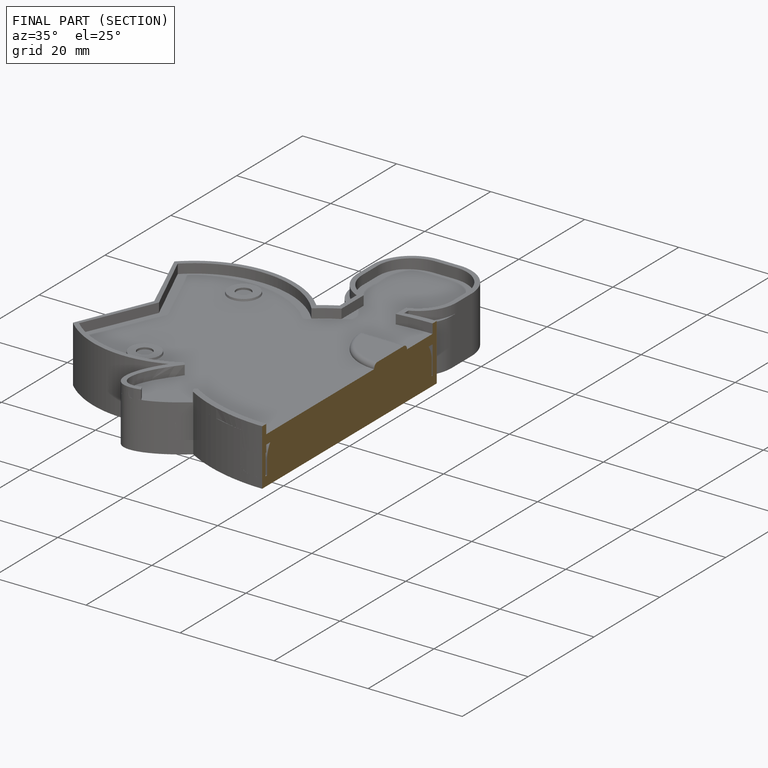
[diagram: finished part — half-section view (interior)]
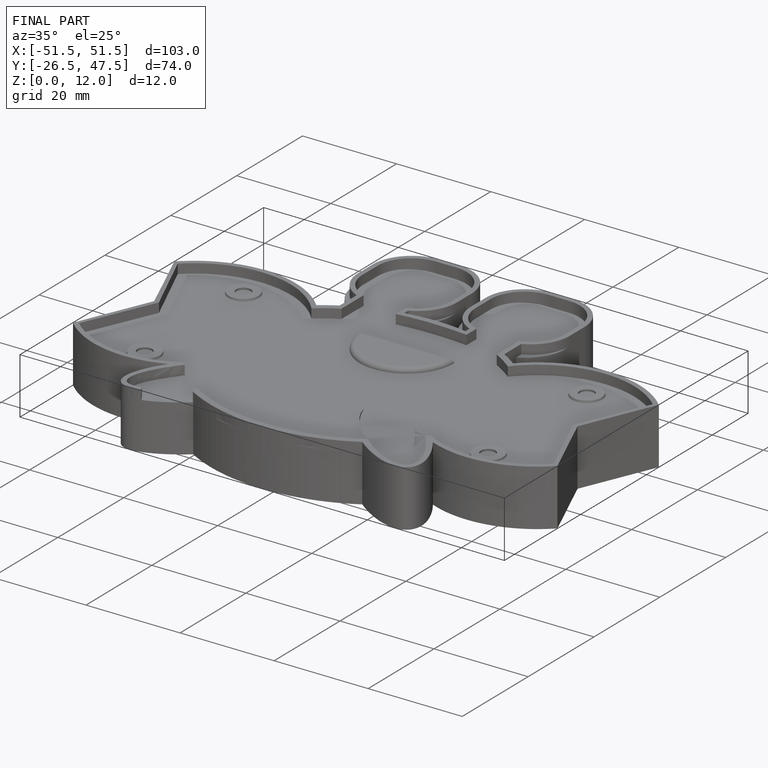
[diagram: finished part — iso view with bounding-box wireframe]
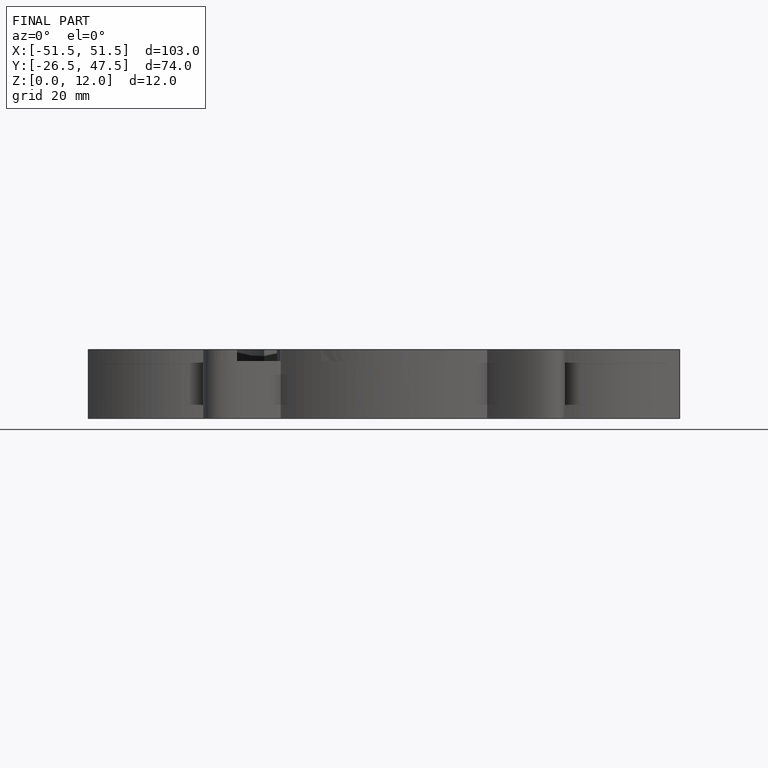
[diagram: finished part — front view with bounding-box wireframe]
